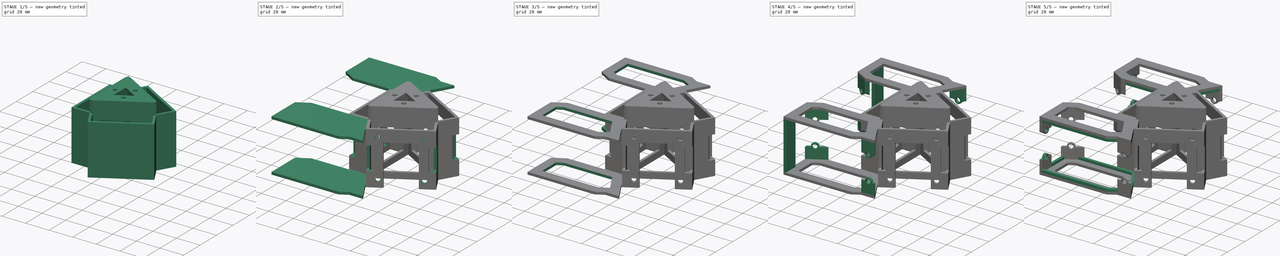
[diagram: build sequence overview — one tinted view per stage of 5, left to right]
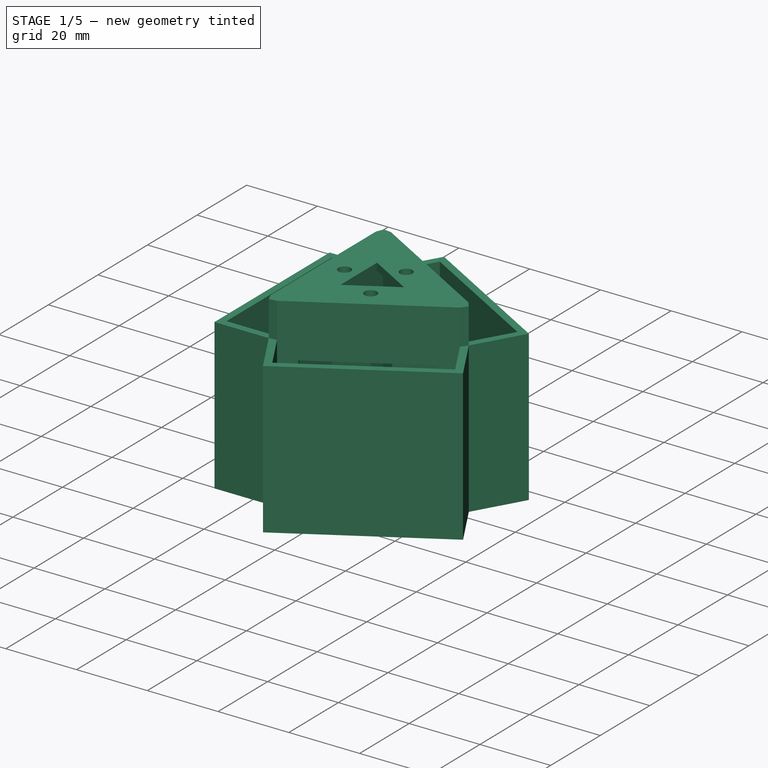
[diagram: stage 1 of 5 — iso view after this stage's code; geometry added in this stage tinted green]
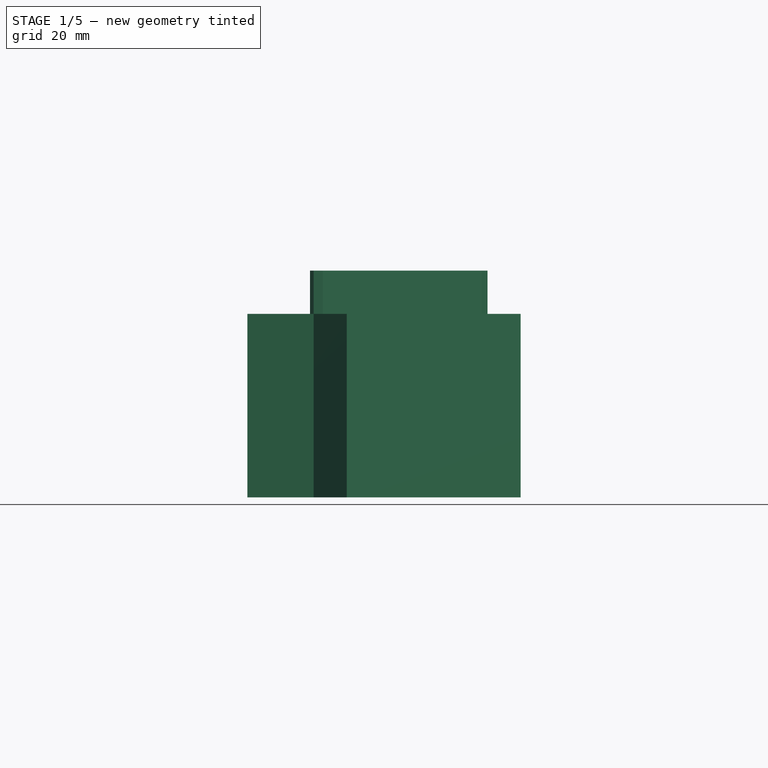
[diagram: stage 1 of 5 — front view after this stage's code; geometry added in this stage tinted green]
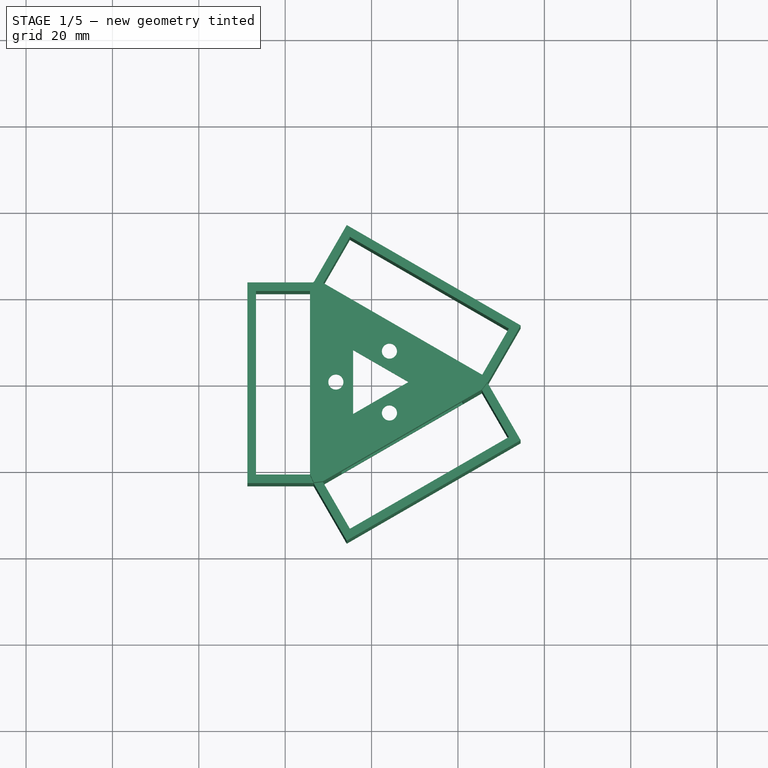
[diagram: stage 1 of 5 — top view after this stage's code; geometry added in this stage tinted green]
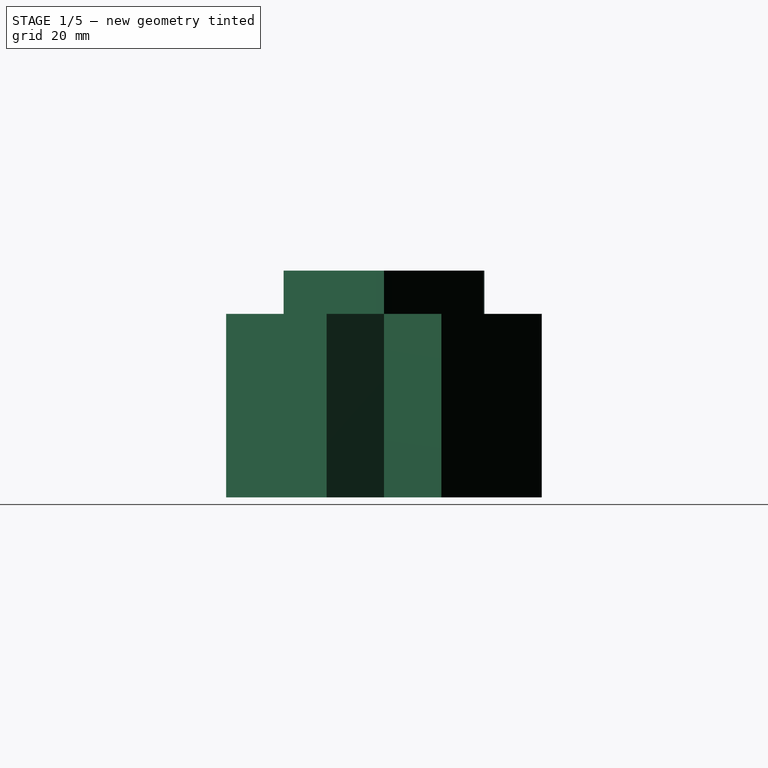
[diagram: stage 1 of 5 — right view after this stage's code; geometry added in this stage tinted green]
FCSTD DOCUMENT  (FreeCAD 0.20R)
Label: core1_motor_tof_9axis
License: All rights reserved
LicenseURL: http://en.wikipedia.org/wiki/All_rights_reserved
objects: Sketcher::SketchObject×29, PartDesign::Pocket×16, PartDesign::Pad×13, PartDesign::Body×1
note: 88 computed .brp shape members not serialized (recipe doc carries the construction recipe); baked Part::Feature solids carry a one-line shape summary decoded from their .brp

FEATURE [Sketcher::SketchObject] Sketch
  FullyConstrained = true
  MapMode = 5
  Support = -> [XY_Plane]
  sketch-geometry (30):
    g0: LineSegment StartX=24.5374 StartY=0 StartZ=0 EndX=-12.2687 EndY=21.25 EndZ=0
    g1: LineSegment StartX=-12.2687 StartY=21.25 StartZ=0 EndX=-12.2687 EndY=-21.25 EndZ=0
    g2: LineSegment StartX=-12.2687 StartY=-21.25 StartZ=0 EndX=24.5374 EndY=0 EndZ=0
    g3: Circle CenterX=0 CenterY=0 CenterZ=0 NormalX=0 NormalY=0 NormalZ=1 AngleXU=0 Radius=24.5374
    g4: LineSegment StartX=-14.2687 StartY=21.25 StartZ=0 EndX=-14.2687 EndY=-21.25 EndZ=0
    g5: LineSegment StartX=-14.2687 StartY=-21.25 StartZ=0 EndX=-26.7687 EndY=-21.25 EndZ=0
    g6: LineSegment StartX=-26.7687 StartY=-21.25 StartZ=0 EndX=-26.7687 EndY=21.25 EndZ=0
    g7: LineSegment StartX=-26.7687 StartY=21.25 StartZ=0 EndX=-14.2687 EndY=21.25 EndZ=0
    g8: LineSegment StartX=-14.2687 StartY=21.25 StartZ=0 EndX=-12.2687 EndY=21.25 EndZ=0
    g9: LineSegment StartX=-12.2687 StartY=21.25 StartZ=0 EndX=-11.2687 EndY=22.9821 EndZ=0
    g10: LineSegment StartX=24.5374 StartY=0 StartZ=0 EndX=25.5374 EndY=1.73205 EndZ=0
    g11: LineSegment StartX=24.5374 StartY=0 StartZ=0 EndX=25.5374 EndY=-1.73205 EndZ=0
    g12: LineSegment StartX=-12.2687 StartY=-21.25 StartZ=0 EndX=-11.2687 EndY=-22.9821 EndZ=0
    g13: LineSegment StartX=-11.2687 StartY=22.9821 StartZ=0 EndX=25.5374 EndY=1.73205 EndZ=0
    g14: LineSegment StartX=25.5374 StartY=1.73205 StartZ=0 EndX=31.7874 EndY=12.5574 EndZ=0
    g15: LineSegment StartX=31.7874 StartY=12.5574 StartZ=0 EndX=-5.01869 EndY=33.8074 EndZ=0
    g16: LineSegment StartX=-5.01869 StartY=33.8074 StartZ=0 EndX=-11.2687 EndY=22.9821 EndZ=0
    g17: LineSegment StartX=-11.2687 StartY=-22.9821 StartZ=0 EndX=25.5374 EndY=-1.73205 EndZ=0
    g18: LineSegment StartX=25.5374 StartY=-1.73205 StartZ=0 EndX=31.7874 EndY=-12.5574 EndZ=0
    g19: LineSegment StartX=31.7874 StartY=-12.5574 StartZ=0 EndX=-5.01869 EndY=-33.8074 EndZ=0
    g20: LineSegment StartX=-5.01869 StartY=-33.8074 StartZ=0 EndX=-11.2687 EndY=-22.9821 EndZ=0
    g21: LineSegment StartX=-13.4234 StartY=23.25 StartZ=0 EndX=-5.75074 EndY=36.5394 EndZ=0
    g22: LineSegment StartX=-5.75074 StartY=36.5394 StartZ=0 EndX=34.5194 EndY=13.2894 EndZ=0
    g23: LineSegment StartX=34.5194 StartY=13.2894 StartZ=0 EndX=26.8468 EndY=0 EndZ=0
    g24: LineSegment StartX=26.8468 StartY=0 StartZ=0 EndX=34.5194 EndY=-13.2894 EndZ=0
    g25: LineSegment StartX=34.5194 StartY=-13.2894 StartZ=0 EndX=-5.75074 EndY=-36.5394 EndZ=0
    g26: LineSegment StartX=-5.75074 StartY=-36.5394 StartZ=0 EndX=-13.4234 EndY=-23.25 EndZ=0
    g27: LineSegment StartX=-13.4234 StartY=-23.25 StartZ=0 EndX=-28.7687 EndY=-23.25 EndZ=0
    g28: LineSegment StartX=-28.7687 StartY=-23.25 StartZ=0 EndX=-28.7687 EndY=23.25 EndZ=0
    g29: LineSegment StartX=-28.7687 StartY=23.25 StartZ=0 EndX=-13.4234 EndY=23.25 EndZ=0
  constraints (84):
    c: Coincident(g0,g1)
    c: Coincident(g1,g2)
    c: Coincident(g2,g0)
    c: Equal(g0,g1)
    c: Equal(g0,g2)
    c: PointOnObject(g0,g3)
    c: PointOnObject(g1,g3)
    c: PointOnObject(g2,g3)
    c: Coincident(g3,g-1)
    c: PointOnObject(g2,g-1)
    c: Distance(g1) = 42.5
    c: Vertical(g4)
    c: Coincident(g4,g5)
    c: Horizontal(g5)
    c: Coincident(g5,g6)
    c: Vertical(g6)
    c: Coincident(g6,g7)
    c: Coincident(g7,g4)
    c: Distance(g4,g0) = 2
    c: Parallel(g5,g7)
    c: Distance(g6) = 42.5
    c: Distance(g7) = 12.5
    c: Coincident(g8,g4)
    c: Coincident(g8,g0)
    c: Perpendicular(g4,g8)
    c: Coincident(g9,g0)
    c: Coincident(g10,g0)
    c: Coincident(g11,g0)
    c: Coincident(g12,g1)
    c: Perpendicular(g2,g12)
    c: Perpendicular(g2,g11)
    c: Perpendicular(g0,g9)
    c: Distance(g9) = 2
    c: Distance(g10) = 2
    c: Distance(g11) = 2
    c: Distance(g12) = 2
    c: Coincident(g9,g13)
    c: Coincident(g13,g10)
    c: Coincident(g13,g14)
    c: Coincident(g14,g15)
    c: Coincident(g15,g16)
    c: Coincident(g16,g13)
    c: Parallel(g13,g15)
    c: Parallel(g14,g16)
    c: Angle(g10,g0) = 1.5708
    c: Distance(g14) = 12.5
    c: Perpendicular(g14,g15)
    c: Coincident(g12,g17)
    c: Coincident(g17,g11)
    c: Coincident(g17,g18)
    c: Coincident(g18,g19)
    c: Coincident(g19,g20)
    c: Coincident(g20,g17)
    c: Parallel(g17,g19)
    c: Perpendicular(g18,g17)
    c: Parallel(g20,g18)
    c: Distance(g20) = 12.5
    c: Coincident(g21,g22)
    c: Coincident(g22,g23)
    c: PointOnObject(g23,g-1)
    c: Coincident(g23,g24)
    c: Coincident(g24,g25)
    c: Coincident(g25,g26)
    c: Coincident(g26,g27)
    c: Horizontal(g27)
    c: Coincident(g27,g28)
    c: Vertical(g28)
    c: Coincident(g28,g29)
    c: Coincident(g29,g21)
    c: Horizontal(g29)
    c: Parallel(g21,g16)
    c: Parallel(g22,g15)
    c: Parallel(g23,g14)
    c: Parallel(g24,g18)
    c: Parallel(g19,g25)
    c: Parallel(g20,g26)
    c: Distance(g5,g27) = 2
    c: Distance(g5,g28) = 2
    c: Distance(g6,g29) = 2
    c: Distance(g15,g21) = 2
    c: Distance(g15,g22) = 2
    c: Distance(g14,g23) = 2
    c: Distance(g18,g25) = 2
    c: Distance(g19,g26) = 2
FEATURE [PartDesign::Pad] Pad
  Direction = (0,0,1)
  Length = 42.5
  Length2 = 10
  Profile = -> Sketch
  ReferenceAxis = -> Sketch [N_Axis]
  Type = 0
FEATURE [Sketcher::SketchObject] Sketch001
  ExternalGeometry = -> [Pad]
  FullyConstrained = true
  MapMode = 5
  Placement = pos=(0,0,42.5) rot=(0,0,1;0rad)
  Support = -> [Pad]
  sketch-geometry (12):
    g0: LineSegment StartX=-13.4234 StartY=23.25 StartZ=0 EndX=-11.2687 EndY=22.9821 EndZ=0
    g1: LineSegment StartX=-11.2687 StartY=22.9821 StartZ=0 EndX=25.5374 EndY=1.73205 EndZ=0
    g2: LineSegment StartX=25.5374 StartY=1.73205 StartZ=0 EndX=26.8468 EndY=0 EndZ=0
    g3: LineSegment StartX=26.8468 StartY=0 StartZ=0 EndX=25.5374 EndY=-1.73205 EndZ=0
    g4: LineSegment StartX=25.5374 StartY=-1.73205 StartZ=0 EndX=-11.2687 EndY=-22.9821 EndZ=0
    g5: LineSegment StartX=-11.2687 StartY=-22.9821 StartZ=0 EndX=-13.4234 EndY=-23.25 EndZ=0
    g6: LineSegment StartX=-13.4234 StartY=-23.25 StartZ=0 EndX=-14.2687 EndY=-21.25 EndZ=0
    g7: LineSegment StartX=-14.2687 StartY=-21.25 StartZ=0 EndX=-14.2687 EndY=21.25 EndZ=0
    g8: LineSegment StartX=-14.2687 StartY=21.25 StartZ=0 EndX=-13.4234 EndY=23.25 EndZ=0
    g9: LineSegment StartX=-12.2687 StartY=21.25 StartZ=0 EndX=24.5374 EndY=-3.6e-15 EndZ=0
    g10: LineSegment StartX=24.5374 StartY=-3.6e-15 StartZ=0 EndX=-12.2687 EndY=-21.25 EndZ=0
    g11: LineSegment StartX=-12.2687 StartY=-21.25 StartZ=0 EndX=-12.2687 EndY=21.25 EndZ=0
  constraints (24):
    c: Coincident(g-3,g0)
    c: Coincident(g0,g-7)
    c: Coincident(g0,g1)
    c: Coincident(g1,g-7)
    c: Coincident(g1,g2)
    c: Coincident(g2,g-4)
    c: Coincident(g2,g3)
    c: Coincident(g3,g-8)
    c: Coincident(g3,g4)
    c: Coincident(g4,g-8)
    c: Coincident(g4,g5)
    c: Coincident(g5,g-5)
    c: Coincident(g5,g6)
    c: Coincident(g6,g-6)
    c: Coincident(g6,g7)
    c: Coincident(g7,g-6)
    c: Coincident(g7,g8)
    c: Coincident(g8,g0)
    c: Coincident(g-10,g9)
    c: Coincident(g9,g-9)
    c: Coincident(g9,g10)
    c: Coincident(g10,g-10)
    c: Coincident(g10,g11)
    c: Coincident(g11,g9)
FEATURE [PartDesign::Pad] Pad001
  BaseFeature = -> Pad
  Direction = (0,0,1)
  Length = 10
  Length2 = 10
  Profile = -> Sketch001
  ReferenceAxis = -> Sketch001 [N_Axis]
  Type = 0
FEATURE [Sketcher::SketchObject] Sketch002
  ExternalGeometry = -> [Pad001]
  FullyConstrained = true
  MapMode = 5
  Placement = pos=(0,0,52.5) rot=(0,0,1;0rad)
  Support = -> [Pad001]
  sketch-geometry (14):
    g0: LineSegment StartX=-12.2687 StartY=21.25 StartZ=0 EndX=24.5374 EndY=-3.6e-15 EndZ=0
    g1: LineSegment StartX=24.5374 StartY=-3.6e-15 StartZ=0 EndX=-12.2687 EndY=-21.25 EndZ=0
    g2: LineSegment StartX=-12.2687 StartY=-21.25 StartZ=0 EndX=-12.2687 EndY=21.25 EndZ=0
    g3: LineSegment StartX=8.53739 StartY=0 StartZ=0 EndX=-4.26869 EndY=7.39359 EndZ=0
    g4: LineSegment StartX=-4.26869 StartY=7.39359 StartZ=0 EndX=-4.26869 EndY=-7.39359 EndZ=0
    g5: LineSegment StartX=-4.26869 StartY=-7.39359 StartZ=0 EndX=8.53739 EndY=0 EndZ=0
    g6: Circle CenterX=0 CenterY=0 CenterZ=0 NormalX=0 NormalY=0 NormalZ=1 AngleXU=0 Radius=8.53739
    g7: LineSegment StartX=-8.26869 StartY=0 StartZ=0 EndX=4.13435 EndY=-7.1609 EndZ=0
    g8: LineSegment StartX=4.13435 StartY=-7.1609 StartZ=0 EndX=4.13435 EndY=7.1609 EndZ=0
    g9: LineSegment StartX=4.13435 StartY=7.1609 StartZ=0 EndX=-8.26869 EndY=0 EndZ=0
    g10: Circle CenterX=0 CenterY=0 CenterZ=0 NormalX=0 NormalY=0 NormalZ=1 AngleXU=0 Radius=8.26869
    g11: Circle CenterX=4.13435 CenterY=7.1609 CenterZ=0 NormalX=0 NormalY=0 NormalZ=1 AngleXU=0 Radius=1.75
    g12: Circle CenterX=4.13435 CenterY=-7.1609 CenterZ=0 NormalX=0 NormalY=0 NormalZ=1 AngleXU=0 Radius=1.75
    g13: Circle CenterX=-8.26869 CenterY=0 CenterZ=0 NormalX=0 NormalY=0 NormalZ=1 AngleXU=0 Radius=1.75
  constraints (34):
    c: Coincident(g-4,g0)
    c: Coincident(g0,g-3)
    c: Coincident(g0,g1)
    c: Coincident(g1,g-4)
    c: Coincident(g1,g2)
    c: Coincident(g2,g0)
    c: Coincident(g3,g4)
    c: Coincident(g4,g5)
    c: Coincident(g5,g3)
    c: Equal(g3,g4)
    c: Equal(g3,g5)
    c: PointOnObject(g3,g6)
    c: PointOnObject(g4,g6)
    c: PointOnObject(g5,g6)
    c: Coincident(g6,g-1)
    c: PointOnObject(g5,g-1)
    c: Distance(g3,g0) = 8
    c: Coincident(g7,g8)
    c: Coincident(g8,g9)
    c: Coincident(g9,g7)
    c: Equal(g7,g8)
    c: Equal(g7,g9)
    c: PointOnObject(g7,g10)
    c: PointOnObject(g8,g10)
    c: PointOnObject(g9,g10)
    c: Coincident(g10,g6)
    c: PointOnObject(g9,g-1)
    c: Distance(g8,g0) = 4
    c: Coincident(g11,g8)
    c: Coincident(g12,g7)
    c: Coincident(g13,g7)
    c: Diameter(g11) = 3.5
    c: Diameter(g12) = 3.5
    c: Diameter(g13) = 3.5
FEATURE [PartDesign::Pad] Pad002
  BaseFeature = -> Pad001
  Direction = (0,0,1)
  Length = 2
  Length2 = 10
  Profile = -> Sketch002
  ReferenceAxis = -> Sketch002 [N_Axis]
  Reversed = true
  Type = 0
FEATURE [Sketcher::SketchObject] Sketch003
  ExternalGeometry = -> [Pad002]
  FullyConstrained = true
  MapMode = 5
  Placement = pos=(7.13435,-12.3571,0) rot=(0.935113,0.250563,0.250563;1.63783rad)
  Support = -> [Pad002]
  sketch-geometry (4):
    g0: LineSegment StartX=-16.25 StartY=37.5 StartZ=0 EndX=16.25 EndY=37.5 EndZ=0
    g1: LineSegment StartX=16.25 StartY=37.5 StartZ=0 EndX=16.25 EndY=5 EndZ=0
    g2: LineSegment StartX=16.25 StartY=5 StartZ=0 EndX=-16.25 EndY=5 EndZ=0
    g3: LineSegment StartX=-16.25 StartY=5 StartZ=0 EndX=-16.25 EndY=37.5 EndZ=0
  constraints (12):
    c: Coincident(g0,g1)
    c: Coincident(g1,g2)
    c: Coincident(g2,g3)
    c: Coincident(g3,g0)
    c: Horizontal(g0)
    c: Horizontal(g2)
    c: Vertical(g1)
    c: Vertical(g3)
    c: Distance(g2,g-1) = 5
    c: Distance(g1,g-4) = 5
    c: Distance(g0,g-3) = 5
    c: Distance(g0,g-5) = 5
FEATURE [PartDesign::Pocket] Pocket
  BaseFeature = -> Pad002
  Direction = (-0.5,0.866025,1e-16)
  Length = 2
  Length2 = 5
  Profile = -> Sketch003
  ReferenceAxis = -> Sketch003 [N_Axis]
  Type = 0
FEATURE [Sketcher::SketchObject] Sketch004
  ExternalGeometry = -> [Pocket]
  FullyConstrained = true
  MapMode = 5
  Placement = pos=(-14.2687,0,0) rot=(0.57735,-0.57735,-0.57735;2.0944rad)
  Support = -> [Pocket]
  sketch-geometry (4):
    g0: LineSegment StartX=-16.25 StartY=37.5 StartZ=0 EndX=16.25 EndY=37.5 EndZ=0
    g1: LineSegment StartX=16.25 StartY=37.5 StartZ=0 EndX=16.25 EndY=5 EndZ=0
    g2: LineSegment StartX=16.25 StartY=5 StartZ=0 EndX=-16.25 EndY=5 EndZ=0
    g3: LineSegment StartX=-16.25 StartY=5 StartZ=0 EndX=-16.25 EndY=37.5 EndZ=0
  constraints (12):
    c: Coincident(g0,g1)
    c: Coincident(g1,g2)
    c: Coincident(g2,g3)
    c: Coincident(g3,g0)
    c: Horizontal(g0)
    c: Horizontal(g2)
    c: Vertical(g1)
    c: Vertical(g3)
    c: Distance(g2,g-1) = 5
    c: Distance(g1,g-5) = 5
    c: Distance(g0,g-3) = 5
    c: Distance(g0,g-4) = 5
FEATURE [PartDesign::Pocket] Pocket001
  BaseFeature = -> Pocket
  Direction = (1,0,0)
  Length = 2
  Length2 = 5
  Profile = -> Sketch004
  ReferenceAxis = -> Sketch004 [N_Axis]
  Type = 0
FEATURE [Sketcher::SketchObject] Sketch005
  ExternalGeometry = -> [Pocket001]
  FullyConstrained = true
  MapMode = 5
  Placement = pos=(7.13435,12.3571,0) rot=(0.186157,0.694747,0.694747;2.77349rad)
  Support = -> [Pocket001]
  sketch-geometry (4):
    g0: LineSegment StartX=-16.25 StartY=37.5 StartZ=0 EndX=16.25 EndY=37.5 EndZ=0
    g1: LineSegment StartX=16.25 StartY=37.5 StartZ=0 EndX=16.25 EndY=5 EndZ=0
    g2: LineSegment StartX=16.25 StartY=5 StartZ=0 EndX=-16.25 EndY=5 EndZ=0
    g3: LineSegment StartX=-16.25 StartY=5 StartZ=0 EndX=-16.25 EndY=37.5 EndZ=0
  constraints (12):
    c: Coincident(g0,g1)
    c: Coincident(g1,g2)
    c: Coincident(g2,g3)
    c: Coincident(g3,g0)
    c: Horizontal(g0)
    c: Horizontal(g2)
    c: Vertical(g1)
    c: Vertical(g3)
    c: Distance(g2,g-1) = 5
    c: Distance(g1,g-5) = 5
    c: Distance(g0,g-3) = 5
    c: Distance(g0,g-4) = 5
FEATURE [PartDesign::Pocket] Pocket002
  BaseFeature = -> Pocket001
  Direction = (-0.5,-0.866025,0)
  Length = 2
  Length2 = 5
  Profile = -> Sketch005
  ReferenceAxis = -> Sketch005 [N_Axis]
  Type = 0
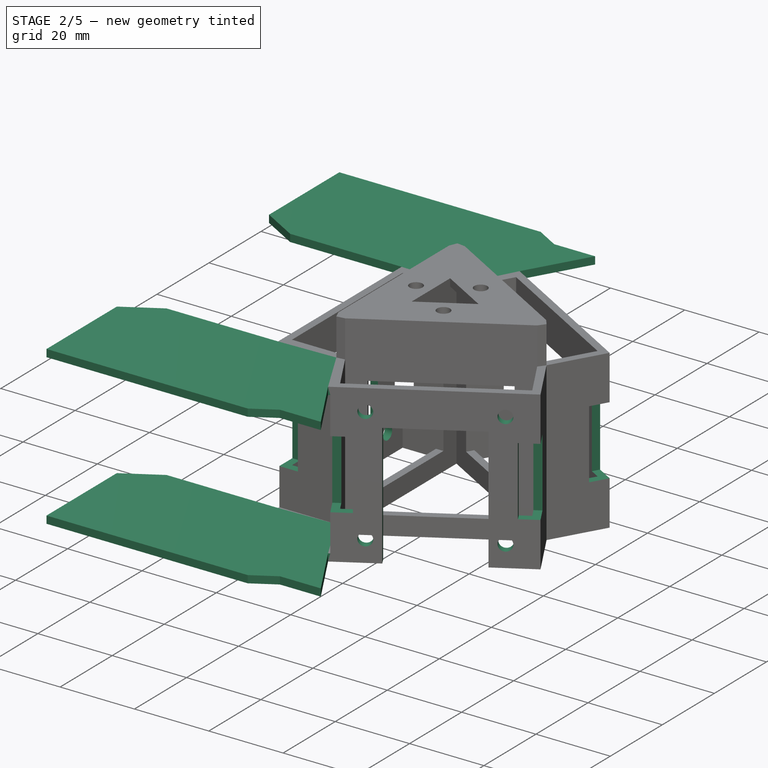
[diagram: stage 2 of 5 — iso view after this stage's code; geometry added in this stage tinted green]
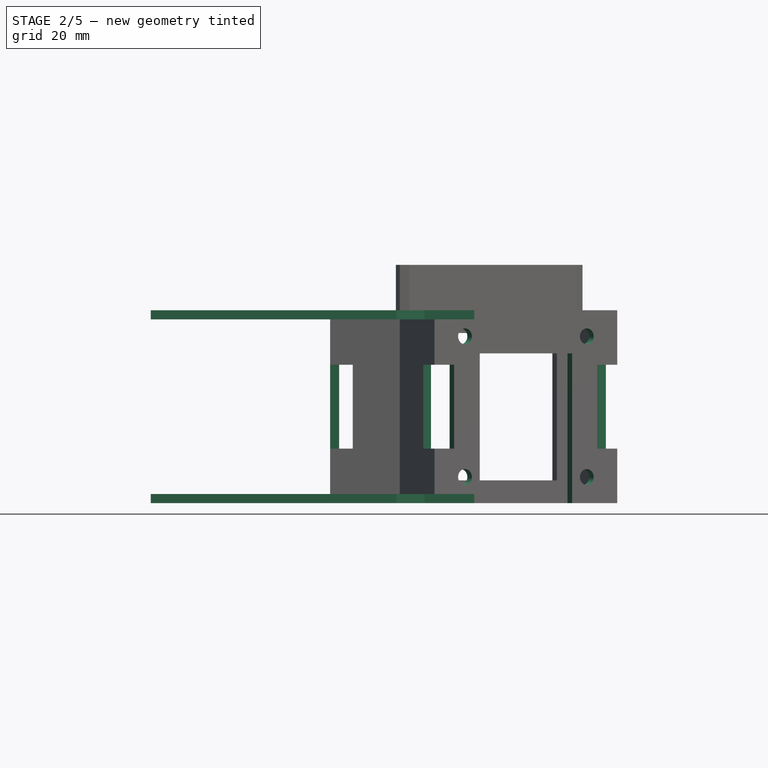
[diagram: stage 2 of 5 — front view after this stage's code; geometry added in this stage tinted green]
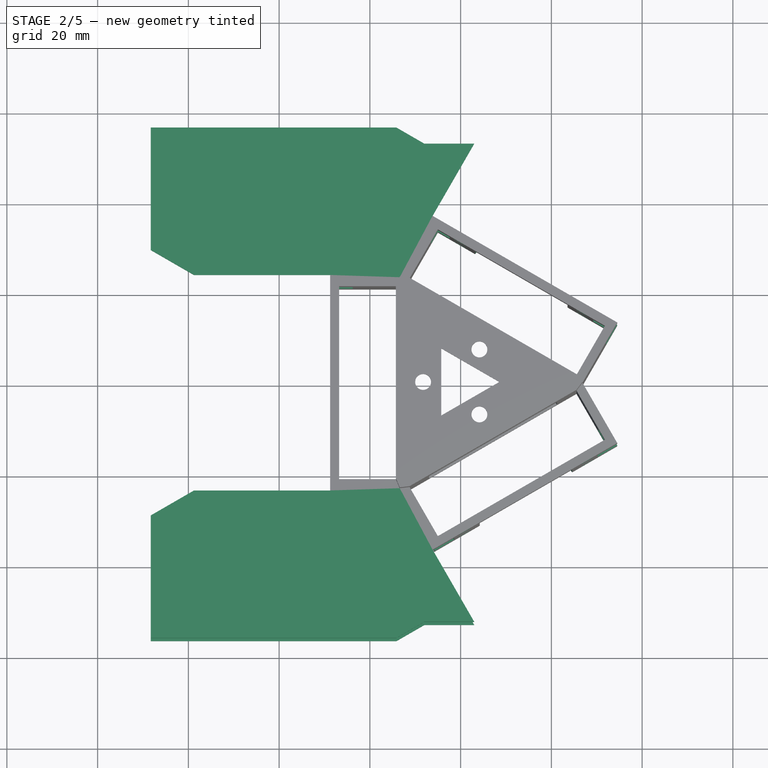
[diagram: stage 2 of 5 — top view after this stage's code; geometry added in this stage tinted green]
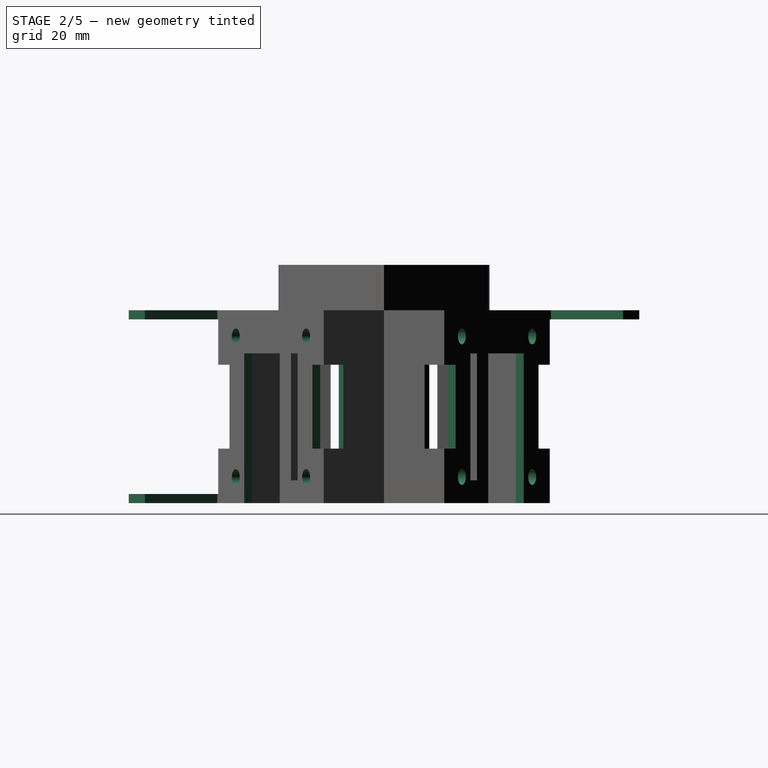
[diagram: stage 2 of 5 — right view after this stage's code; geometry added in this stage tinted green]
FEATURE [Sketcher::SketchObject] Sketch006
  ExternalGeometry = -> [Pocket002]
  FullyConstrained = true
  MapMode = 5
  Placement = pos=(14.3843,-24.9144,0) rot=(0.935113,0.250563,0.250563;1.63783rad)
  Support = -> [Pocket002]
  sketch-geometry (20):
    g0: LineSegment StartX=-15.5 StartY=36.75 StartZ=0 EndX=15.5 EndY=36.75 EndZ=0
    g1: LineSegment StartX=15.5 StartY=36.75 StartZ=0 EndX=15.5 EndY=5.75 EndZ=0
    g2: LineSegment StartX=15.5 StartY=5.75 StartZ=0 EndX=-15.5 EndY=5.75 EndZ=0
    g3: LineSegment StartX=-15.5 StartY=5.75 StartZ=0 EndX=-15.5 EndY=36.75 EndZ=0
    g4: Circle CenterX=-15.5 CenterY=36.75 CenterZ=0 NormalX=0 NormalY=0 NormalZ=1 AngleXU=0 Radius=1.75
    g5: Circle CenterX=15.5 CenterY=36.75 CenterZ=0 NormalX=0 NormalY=0 NormalZ=1 AngleXU=0 Radius=1.75
    g6: Circle CenterX=15.5 CenterY=5.75 CenterZ=0 NormalX=0 NormalY=0 NormalZ=1 AngleXU=0 Radius=1.75
    g7: Circle CenterX=-15.5 CenterY=5.75 CenterZ=0 NormalX=0 NormalY=0 NormalZ=1 AngleXU=0 Radius=1.75
    g8: LineSegment StartX=-11.75 StartY=33 StartZ=0 EndX=11.75 EndY=33 EndZ=0
    g9: LineSegment StartX=11.75 StartY=33 StartZ=0 EndX=11.75 EndY=0 EndZ=0
    g10: LineSegment StartX=11.75 StartY=0 StartZ=0 EndX=-11.75 EndY=0 EndZ=0
    g11: LineSegment StartX=-11.75 StartY=0 StartZ=0 EndX=-11.75 EndY=33 EndZ=0
    g12: LineSegment StartX=-23.25 StartY=30.5 StartZ=0 EndX=-18.25 EndY=30.5 EndZ=0
    g13: LineSegment StartX=-18.25 StartY=30.5 StartZ=0 EndX=-18.25 EndY=12 EndZ=0
    g14: LineSegment StartX=-18.25 StartY=12 StartZ=0 EndX=-23.25 EndY=12 EndZ=0
    g15: LineSegment StartX=-23.25 StartY=12 StartZ=0 EndX=-23.25 EndY=30.5 EndZ=0
    g16: LineSegment StartX=23.25 StartY=30.5 StartZ=0 EndX=18.25 EndY=30.5 EndZ=0
    g17: LineSegment StartX=18.25 StartY=30.5 StartZ=0 EndX=18.25 EndY=12 EndZ=0
    g18: LineSegment StartX=18.25 StartY=12 StartZ=0 EndX=23.25 EndY=12 EndZ=0
    g19: LineSegment StartX=23.25 StartY=12 StartZ=0 EndX=23.25 EndY=30.5 EndZ=0
  constraints (56):
    c: Coincident(g0,g1)
    c: Coincident(g1,g2)
    c: Coincident(g2,g3)
    c: Coincident(g3,g0)
    c: Horizontal(g0)
    c: Horizontal(g2)
    c: Vertical(g1)
    c: Vertical(g3)
    c: Distance(g0) = 31
    c: Distance(g3) = 31
    c: Distance(g0,g-3) = 5.75
    c: Distance(g0,g-6) = 5.75
    c: Coincident(g4,g0)
    c: Coincident(g5,g0)
    c: Coincident(g6,g1)
    c: Coincident(g7,g2)
    c: Diameter(g4) = 3.5
    c: Diameter(g5) = 3.5
    c: Diameter(g6) = 3.5
    c: Diameter(g7) = 3.5
    c: Coincident(g8,g9)
    c: Coincident(g9,g10)
    c: Coincident(g10,g11)
    c: Coincident(g11,g8)
    c: Horizontal(g8)
    c: Horizontal(g10)
    c: Vertical(g9)
    c: Vertical(g11)
    c: PointOnObject(g9,g-1)
    c: Distance(g8,g3) = 3.75
    c: Distance(g8,g1) = 3.75
    c: Distance(g8,g0) = 3.75
    c: Coincident(g12,g13)
    c: Coincident(g13,g14)
    c: Coincident(g14,g15)
    c: Coincident(g15,g12)
    c: Horizontal(g12)
    c: Horizontal(g14)
    c: Vertical(g13)
    c: Vertical(g15)
    c: PointOnObject(g12,g-4)
    c: Coincident(g16,g17)
    c: Coincident(g17,g18)
    c: Coincident(g18,g19)
    c: Coincident(g19,g16)
    c: Horizontal(g16)
    c: Horizontal(g18)
    c: Vertical(g17)
    c: Vertical(g19)
    c: PointOnObject(g16,g-5)
    c: Distance(g16,g-3) = 12
    c: Distance(g17,g-1) = 12
    c: Distance(g12,g-3) = 12
    c: Distance(g13,g-1) = 12
    c: Distance(g14) = 5
    c: Distance(g18) = 5
FEATURE [PartDesign::Pocket] Pocket003
  BaseFeature = -> Pocket002
  Direction = (-0.5,0.866025,-1e-16)
  Length = 5
  Length2 = 5
  Profile = -> Sketch006
  ReferenceAxis = -> Sketch006 [N_Axis]
  Type = 0
FEATURE [Sketcher::SketchObject] Sketch007
  ExternalGeometry = -> [Pocket003]
  FullyConstrained = true
  MapMode = 5
  Placement = pos=(-28.7687,0,0) rot=(0.57735,-0.57735,-0.57735;2.0944rad)
  Support = -> [Pocket003]
  sketch-geometry (20):
    g0: LineSegment StartX=-15.5 StartY=36.75 StartZ=0 EndX=15.5 EndY=36.75 EndZ=0
    g1: LineSegment StartX=15.5 StartY=36.75 StartZ=0 EndX=15.5 EndY=5.75 EndZ=0
    g2: LineSegment StartX=15.5 StartY=5.75 StartZ=0 EndX=-15.5 EndY=5.75 EndZ=0
    g3: LineSegment StartX=-15.5 StartY=5.75 StartZ=0 EndX=-15.5 EndY=36.75 EndZ=0
    g4: Circle CenterX=-15.5 CenterY=36.75 CenterZ=0 NormalX=0 NormalY=0 NormalZ=1 AngleXU=0 Radius=1.75
    g5: Circle CenterX=15.5 CenterY=36.75 CenterZ=0 NormalX=0 NormalY=0 NormalZ=1 AngleXU=0 Radius=1.75
    g6: Circle CenterX=15.5 CenterY=5.75 CenterZ=0 NormalX=0 NormalY=0 NormalZ=1 AngleXU=0 Radius=1.75
    g7: Circle CenterX=-15.5 CenterY=5.75 CenterZ=0 NormalX=0 NormalY=0 NormalZ=1 AngleXU=0 Radius=1.75
    g8: LineSegment StartX=-11.75 StartY=33 StartZ=0 EndX=11.75 EndY=33 EndZ=0
    g9: LineSegment StartX=11.75 StartY=33 StartZ=0 EndX=11.75 EndY=0 EndZ=0
    g10: LineSegment StartX=11.75 StartY=0 StartZ=0 EndX=-11.75 EndY=0 EndZ=0
    g11: LineSegment StartX=-11.75 StartY=0 StartZ=0 EndX=-11.75 EndY=33 EndZ=0
    g12: LineSegment StartX=-23.25 StartY=30.5 StartZ=0 EndX=-18.25 EndY=30.5 EndZ=0
    g13: LineSegment StartX=-18.25 StartY=30.5 StartZ=0 EndX=-18.25 EndY=12 EndZ=0
    g14: LineSegment StartX=-18.25 StartY=12 StartZ=0 EndX=-23.25 EndY=12 EndZ=0
    g15: LineSegment StartX=-23.25 StartY=12 StartZ=0 EndX=-23.25 EndY=30.5 EndZ=0
    g16: LineSegment StartX=23.25 StartY=30.5 StartZ=0 EndX=18.25 EndY=30.5 EndZ=0
    g17: LineSegment StartX=18.25 StartY=30.5 StartZ=0 EndX=18.25 EndY=12 EndZ=0
    g18: LineSegment StartX=18.25 StartY=12 StartZ=0 EndX=23.25 EndY=12 EndZ=0
    g19: LineSegment StartX=23.25 StartY=12 StartZ=0 EndX=23.25 EndY=30.5 EndZ=0
  constraints (56):
    c: Coincident(g0,g1)
    c: Coincident(g1,g2)
    c: Coincident(g2,g3)
    c: Coincident(g3,g0)
    c: Horizontal(g0)
    c: Horizontal(g2)
    c: Vertical(g1)
    c: Vertical(g3)
    c: Distance(g0) = 31
    c: Distance(g1) = 31
    c: Distance(g0,g-5) = 5.75
    c: Distance(g0,g-6) = 5.75
    c: Coincident(g4,g0)
    c: Coincident(g5,g0)
    c: Coincident(g6,g1)
    c: Coincident(g7,g2)
    c: Diameter(g4) = 3.5
    c: Diameter(g5) = 3.5
    c: Diameter(g6) = 3.5
    c: Diameter(g7) = 3.5
    c: Coincident(g8,g9)
    c: Coincident(g9,g10)
    c: Coincident(g10,g11)
    c: Coincident(g11,g8)
    c: Horizontal(g8)
    c: Horizontal(g10)
    c: Vertical(g9)
    c: Vertical(g11)
    c: PointOnObject(g9,g-1)
    c: Distance(g8,g0) = 3.75
    c: Distance(g8,g3) = 3.75
    c: Distance(g8,g1) = 3.75
    c: Coincident(g12,g13)
    c: Coincident(g13,g14)
    c: Coincident(g14,g15)
    c: Coincident(g15,g12)
    c: Horizontal(g12)
    c: Horizontal(g14)
    c: Vertical(g13)
    c: Vertical(g15)
    c: PointOnObject(g12,g-3)
    c: Coincident(g16,g17)
    c: Coincident(g17,g18)
    c: Coincident(g18,g19)
    c: Coincident(g19,g16)
    c: Horizontal(g16)
    c: Horizontal(g18)
    c: Vertical(g17)
    c: Vertical(g19)
    c: PointOnObject(g16,g-7)
    c: Distance(g12,g-5) = 12
    c: Distance(g13,g-1) = 12
    c: Distance(g17,g-1) = 12
    c: Distance(g16,g-5) = 12
    c: Distance(g16) = 5
    c: Distance(g12) = 5
FEATURE [PartDesign::Pocket] Pocket004
  BaseFeature = -> Pocket003
  Direction = (1,0,0)
  Length = 5
  Length2 = 5
  Profile = -> Sketch007
  ReferenceAxis = -> Sketch007 [N_Axis]
  Type = 0
FEATURE [Sketcher::SketchObject] Sketch008
  ExternalGeometry = -> [Pocket004]
  FullyConstrained = true
  MapMode = 5
  Placement = pos=(14.3843,24.9144,0) rot=(0.186157,0.694747,0.694747;2.77349rad)
  Support = -> [Pocket004]
  sketch-geometry (20):
    g0: LineSegment StartX=-15.5 StartY=36.75 StartZ=0 EndX=15.5 EndY=36.75 EndZ=0
    g1: LineSegment StartX=15.5 StartY=36.75 StartZ=0 EndX=15.5 EndY=5.75 EndZ=0
    g2: LineSegment StartX=15.5 StartY=5.75 StartZ=0 EndX=-15.5 EndY=5.75 EndZ=0
    g3: LineSegment StartX=-15.5 StartY=5.75 StartZ=0 EndX=-15.5 EndY=36.75 EndZ=0
    g4: Circle CenterX=-15.5 CenterY=36.75 CenterZ=0 NormalX=0 NormalY=0 NormalZ=1 AngleXU=0 Radius=1.75
    g5: Circle CenterX=15.5 CenterY=36.75 CenterZ=0 NormalX=0 NormalY=0 NormalZ=1 AngleXU=0 Radius=1.75
    g6: Circle CenterX=15.5 CenterY=5.75 CenterZ=0 NormalX=0 NormalY=0 NormalZ=1 AngleXU=0 Radius=1.75
    g7: Circle CenterX=-15.5 CenterY=5.75 CenterZ=0 NormalX=0 NormalY=0 NormalZ=1 AngleXU=0 Radius=1.75
    g8: LineSegment StartX=-11.75 StartY=33 StartZ=0 EndX=11.75 EndY=33 EndZ=0
    g9: LineSegment StartX=11.75 StartY=33 StartZ=0 EndX=11.75 EndY=0 EndZ=0
    g10: LineSegment StartX=11.75 StartY=0 StartZ=0 EndX=-11.75 EndY=0 EndZ=0
    g11: LineSegment StartX=-11.75 StartY=0 StartZ=0 EndX=-11.75 EndY=33 EndZ=0
    g12: LineSegment StartX=-23.25 StartY=30.5 StartZ=0 EndX=-18.25 EndY=30.5 EndZ=0
    g13: LineSegment StartX=-18.25 StartY=30.5 StartZ=0 EndX=-18.25 EndY=12 EndZ=0
    g14: LineSegment StartX=-18.25 StartY=12 StartZ=0 EndX=-23.25 EndY=12 EndZ=0
    g15: LineSegment StartX=-23.25 StartY=12 StartZ=0 EndX=-23.25 EndY=30.5 EndZ=0
    g16: LineSegment StartX=23.25 StartY=30.5 StartZ=0 EndX=18.25 EndY=30.5 EndZ=0
    g17: LineSegment StartX=18.25 StartY=30.5 StartZ=0 EndX=18.25 EndY=12 EndZ=0
    g18: LineSegment StartX=18.25 StartY=12 StartZ=0 EndX=23.25 EndY=12 EndZ=0
    g19: LineSegment StartX=23.25 StartY=12 StartZ=0 EndX=23.25 EndY=30.5 EndZ=0
  constraints (56):
    c: Coincident(g0,g1)
    c: Coincident(g1,g2)
    c: Coincident(g2,g3)
    c: Coincident(g3,g0)
    c: Horizontal(g0)
    c: Horizontal(g2)
    c: Vertical(g1)
    c: Vertical(g3)
    c: Distance(g0) = 31
    c: Distance(g1) = 31
    c: Distance(g0,g-5) = 5.75
    c: Distance(g0,g-6) = 5.75
    c: Coincident(g4,g0)
    c: Coincident(g5,g0)
    c: Coincident(g6,g1)
    c: Coincident(g7,g2)
    c: Diameter(g4) = 3.5
    c: Diameter(g5) = 3.5
    c: Diameter(g6) = 3.5
    c: Diameter(g7) = 3.5
    c: Coincident(g8,g9)
    c: Coincident(g9,g10)
    c: Coincident(g10,g11)
    c: Coincident(g11,g8)
    c: Horizontal(g8)
    c: Horizontal(g10)
    c: Vertical(g9)
    c: Vertical(g11)
    c: PointOnObject(g9,g-1)
    c: Distance(g8,g3) = 3.75
    c: Distance(g8,g1) = 3.75
    c: Distance(g8,g0) = 3.75
    c: Coincident(g12,g13)
    c: Coincident(g13,g14)
    c: Coincident(g14,g15)
    c: Coincident(g15,g12)
    c: Horizontal(g12)
    c: Horizontal(g14)
    c: Vertical(g13)
    c: Vertical(g15)
    c: PointOnObject(g12,g-3)
    c: Coincident(g16,g17)
    c: Coincident(g17,g18)
    c: Coincident(g18,g19)
    c: Coincident(g19,g16)
    c: Horizontal(g16)
    c: Horizontal(g18)
    c: Vertical(g17)
    c: Vertical(g19)
    c: PointOnObject(g16,g-7)
    c: Distance(g12,g-5) = 12
    c: Distance(g13,g-1) = 12
    c: Distance(g17,g-1) = 12
    c: Distance(g16,g-5) = 12
    c: Distance(g14) = 5
    c: Distance(g18) = 5
FEATURE [PartDesign::Pocket] Pocket005
  BaseFeature = -> Pocket004
  Direction = (-0.5,-0.866025,0)
  Length = 5
  Length2 = 5
  Profile = -> Sketch008
  ReferenceAxis = -> Sketch008 [N_Axis]
  Type = 0
FEATURE [Sketcher::SketchObject] Sketch009
  ExternalGeometry = -> [Pocket005]
  FullyConstrained = true
  MapMode = 5
  Placement = pos=(0,0,42.5) rot=(0,0,1;0rad)
  Support = -> [Pocket005]
  sketch-geometry (18):
    g0: LineSegment StartX=0 StartY=52.6962 StartZ=0 EndX=-45.6362 EndY=26.3481 EndZ=0
    g1: LineSegment StartX=-45.6362 StartY=26.3481 StartZ=0 EndX=-45.6362 EndY=-26.3481 EndZ=0
    g2: LineSegment StartX=-45.6362 StartY=-26.3481 StartZ=0 EndX=0 EndY=-52.6962 EndZ=0
    g3: LineSegment StartX=0 StartY=-52.6962 StartZ=0 EndX=45.6362 EndY=-26.3481 EndZ=0
    g4: LineSegment StartX=45.6362 StartY=-26.3481 StartZ=0 EndX=45.6362 EndY=26.3481 EndZ=0
    g5: LineSegment StartX=45.6362 StartY=26.3481 StartZ=0 EndX=0 EndY=52.6962 EndZ=0
    g6: Circle CenterX=0 CenterY=0 CenterZ=0 NormalX=0 NormalY=0 NormalZ=1 AngleXU=0 Radius=52.6962
    g7: LineSegment StartX=-28.7687 StartY=23.25 StartZ=0 EndX=-13.4234 EndY=23.25 EndZ=0
    g8: LineSegment StartX=-13.4234 StartY=23.25 StartZ=0 EndX=-5.75074 EndY=36.5394 EndZ=0
    g9: LineSegment StartX=-5.75074 StartY=36.5394 StartZ=0 EndX=-6.18376 EndY=36.7894 EndZ=0
    g10: LineSegment StartX=-6.18376 StartY=36.7894 StartZ=0 EndX=3 EndY=52.6962 EndZ=0
    g11: LineSegment StartX=3 StartY=52.6962 StartZ=0 EndX=-8 EndY=52.6962 EndZ=0
    g12: LineSegment StartX=-8 StartY=52.6962 StartZ=0 EndX=-14.1554 EndY=56.25 EndZ=0
    g13: LineSegment StartX=-14.1554 StartY=56.25 StartZ=0 EndX=-68.295 EndY=56.25 EndZ=0
    g14: LineSegment StartX=-68.295 StartY=56.25 StartZ=0 EndX=-68.295 EndY=29.25 EndZ=0
    g15: LineSegment StartX=-68.295 StartY=29.25 StartZ=0 EndX=-58.7687 EndY=23.75 EndZ=0
    g16: LineSegment StartX=-58.7687 StartY=23.75 StartZ=0 EndX=-28.7687 EndY=23.75 EndZ=0
    g17: LineSegment StartX=-28.7687 StartY=23.75 StartZ=0 EndX=-28.7687 EndY=23.25 EndZ=0
  constraints (46):
    c: Coincident(g0,g1)
    c: Coincident(g1,g2)
    c: Coincident(g2,g3)
    c: Coincident(g3,g4)
    c: Coincident(g4,g5)
    c: Coincident(g5,g0)
    c: Equal(g0, g1-g5) x5
    c: PointOnObject(g0,g6)
    c: PointOnObject(g1,g6)
    c: PointOnObject(g2,g6)
    c: PointOnObject(g3,g6)
    c: PointOnObject(g4,g6)
    c: PointOnObject(g5,g6)
    c: Coincident(g6,g-1)
    c: PointOnObject(g5,g-2)
    c: Coincident(g-4,g7)
    c: Coincident(g7,g-4)
    c: Coincident(g7,g8)
    c: Coincident(g8,g-3)
    c: Coincident(g8,g9)
    c: Coincident(g9,g10)
    c: Coincident(g10,g11)
    c: Horizontal(g11)
    c: Tangent(g11,g6)
    c: Coincident(g11,g12)
    c: Coincident(g12,g13)
    c: Horizontal(g13)
    c: Coincident(g13,g14)
    c: Vertical(g14)
    c: Coincident(g14,g15)
    c: Coincident(g15,g16)
    c: Horizontal(g16)
    c: Coincident(g16,g17)
    c: Coincident(g17,g7)
    c: Angle(g9,g8) = 1.5708
    c: Distance(g9) = 0.5
    c: Angle(g9,g10) = 1.5708
    c: Distance(g10,g-2) = 3
    c: Distance(g11) = 11
    c: Distance(g17) = 0.5
    c: Distance(g16) = 30
    c: Angle(g16,g15) = 2.61799
    c: Distance(g15) = 11
    c: Angle(g7,g17) = 1.5708
    c: Distance(g15,g13) = 32.5
    c: Angle(g11,g12) = 2.61799
FEATURE [Sketcher::SketchObject] MirroredSketch
  FullyConstrained = false
  Placement = pos=(0,0,42.5) rot=(0,0,1;0rad)
  sketch-geometry (18):
    g0: LineSegment StartX=0 StartY=-52.6962 StartZ=0 EndX=-45.6362 EndY=-26.3481 EndZ=0
    g1: LineSegment StartX=-45.6362 StartY=-26.3481 StartZ=0 EndX=-45.6362 EndY=26.3481 EndZ=0
    g2: LineSegment StartX=-45.6362 StartY=26.3481 StartZ=0 EndX=0 EndY=52.6962 EndZ=0
    g3: LineSegment StartX=0 StartY=52.6962 StartZ=0 EndX=45.6362 EndY=26.3481 EndZ=0
    g4: LineSegment StartX=45.6362 StartY=26.3481 StartZ=0 EndX=45.6362 EndY=-26.3481 EndZ=0
    g5: LineSegment StartX=45.6362 StartY=-26.3481 StartZ=0 EndX=0 EndY=-52.6962 EndZ=0
    g6: Circle CenterX=0 CenterY=0 CenterZ=0 NormalX=0 NormalY=0 NormalZ=1 AngleXU=0 Radius=52.6962
    g7: LineSegment StartX=-28.7687 StartY=-23.25 StartZ=0 EndX=-13.4234 EndY=-23.25 EndZ=0
    g8: LineSegment StartX=-13.4234 StartY=-23.25 StartZ=0 EndX=-5.75074 EndY=-36.5394 EndZ=0
    g9: LineSegment StartX=-5.75074 StartY=-36.5394 StartZ=0 EndX=-6.18376 EndY=-36.7894 EndZ=0
    g10: LineSegment StartX=-6.18376 StartY=-36.7894 StartZ=0 EndX=3 EndY=-52.6962 EndZ=0
    g11: LineSegment StartX=3 StartY=-52.6962 StartZ=0 EndX=-8 EndY=-52.6962 EndZ=0
    g12: LineSegment StartX=-8 StartY=-52.6962 StartZ=0 EndX=-14.1554 EndY=-56.25 EndZ=0
    g13: LineSegment StartX=-14.1554 StartY=-56.25 StartZ=0 EndX=-68.295 EndY=-56.25 EndZ=0
    g14: LineSegment StartX=-68.295 StartY=-56.25 StartZ=0 EndX=-68.295 EndY=-29.25 EndZ=0
    g15: LineSegment StartX=-68.295 StartY=-29.25 StartZ=0 EndX=-58.7687 EndY=-23.75 EndZ=0
    g16: LineSegment StartX=-58.7687 StartY=-23.75 StartZ=0 EndX=-28.7687 EndY=-23.75 EndZ=0
    g17: LineSegment StartX=-28.7687 StartY=-23.75 StartZ=0 EndX=-28.7687 EndY=-23.25 EndZ=0
  constraints (40):
    c: Coincident(g0,g1)
    c: Coincident(g1,g2)
    c: Coincident(g2,g3)
    c: Coincident(g3,g4)
    c: Coincident(g4,g5)
    c: Coincident(g5,g0)
    c: Equal(g0, g1-g5) x5
    c: PointOnObject(g0,g6)
    c: PointOnObject(g1,g6)
    c: PointOnObject(g2,g6)
    c: PointOnObject(g3,g6)
    c: PointOnObject(g4,g6)
    c: PointOnObject(g5,g6)
    c: Coincident(g7,g8)
    c: Coincident(g8,g9)
    c: Coincident(g9,g10)
    c: Coincident(g10,g11)
    c: Horizontal(g11)
    c: Tangent(g11,g6)
    c: Coincident(g11,g12)
    c: Coincident(g12,g13)
    c: Horizontal(g13)
    c: Coincident(g13,g14)
    c: Vertical(g14)
    c: Coincident(g14,g15)
    c: Coincident(g15,g16)
    c: Horizontal(g16)
    c: Coincident(g16,g17)
    c: Coincident(g17,g7)
    c: Angle(g9,g8) = -1.5708
    c: Distance(g9) = 0.5
    c: Angle(g9,g10) = -1.5708
    c: Distance(g11) = 11
    c: Distance(g17) = 0.5
    c: Distance(g16) = 30
    c: Angle(g16,g15) = -2.61799
    c: Distance(g15) = 11
    c: Angle(g7,g17) = -1.5708
    c: Distance(g15,g13) = 32.5
    c: Angle(g11,g12) = -2.61799
FEATURE [PartDesign::Pad] Pad003
  BaseFeature = -> Pocket005
  Direction = (0,0,1)
  Length = 2
  Length2 = 10
  Profile = -> Sketch009
  ReferenceAxis = -> Sketch009 [N_Axis]
  Reversed = true
  Type = 0
FEATURE [PartDesign::Pad] Pad004
  BaseFeature = -> Pad003
  Direction = (0,0,1)
  Length = 2
  Length2 = 10
  Profile = -> MirroredSketch
  ReferenceAxis = -> MirroredSketch [N_Axis]
  Reversed = true
  Type = 0
FEATURE [Sketcher::SketchObject] Sketch010
  ExternalGeometry = -> [Pad004]
  FullyConstrained = true
  MapMode = 5
  Placement = pos=(0,0,0) rot=(1,0,0;3.14159rad)
  Support = -> [Pad004]
  sketch-geometry (11):
    g0: LineSegment StartX=-68.295 StartY=56.25 StartZ=0 EndX=-68.295 EndY=29.25 EndZ=0
    g1: LineSegment StartX=-68.295 StartY=29.25 StartZ=0 EndX=-58.7687 EndY=23.75 EndZ=0
    g2: LineSegment StartX=-58.7687 StartY=23.75 StartZ=0 EndX=-28.7687 EndY=23.75 EndZ=0
    g3: LineSegment StartX=-28.7687 StartY=23.75 StartZ=0 EndX=-28.7687 EndY=23.25 EndZ=0
    g4: LineSegment StartX=-28.7687 StartY=23.25 StartZ=0 EndX=-13.4234 EndY=23.25 EndZ=0
    g5: LineSegment StartX=-13.4234 StartY=23.25 StartZ=0 EndX=-5.75074 EndY=36.5394 EndZ=0
    g6: LineSegment StartX=-5.75074 StartY=36.5394 StartZ=0 EndX=-6.18376 EndY=36.7894 EndZ=0
    g7: LineSegment StartX=-6.18376 StartY=36.7894 StartZ=0 EndX=3 EndY=52.6962 EndZ=0
    g8: LineSegment StartX=3 StartY=52.6962 StartZ=0 EndX=-8 EndY=52.6962 EndZ=0
    g9: LineSegment StartX=-8 StartY=52.6962 StartZ=0 EndX=-14.1554 EndY=56.25 EndZ=0
    g10: LineSegment StartX=-14.1554 StartY=56.25 StartZ=0 EndX=-68.295 EndY=56.25 EndZ=0
  constraints (22):
    c: Coincident(g-3,g0)
    c: Coincident(g0,g-4)
    c: Coincident(g0,g1)
    c: Coincident(g1,g-5)
    c: Coincident(g1,g2)
    c: Coincident(g2,g-5)
    c: Coincident(g2,g3)
    c: Coincident(g3,g-6)
    c: Coincident(g3,g4)
    c: Coincident(g4,g-6)
    c: Coincident(g4,g5)
    c: Coincident(g5,g-8)
    c: Coincident(g5,g6)
    c: Coincident(g6,g-8)
    c: Coincident(g6,g7)
    c: Coincident(g7,g-7)
    c: Coincident(g7,g8)
    c: Coincident(g8,g-7)
    c: Coincident(g8,g9)
    c: Coincident(g9,g-3)
    c: Coincident(g9,g10)
    c: Coincident(g10,g0)
FEATURE [Sketcher::SketchObject] MirroredSketch001
  FullyConstrained = false
  Placement = pos=(0,0,0) rot=(1,0,0;3.14159rad)
  sketch-geometry (11):
    g0: LineSegment StartX=-68.295 StartY=-56.25 StartZ=0 EndX=-68.295 EndY=-29.25 EndZ=0
    g1: LineSegment StartX=-68.295 StartY=-29.25 StartZ=0 EndX=-58.7687 EndY=-23.75 EndZ=0
    g2: LineSegment StartX=-58.7687 StartY=-23.75 StartZ=0 EndX=-28.7687 EndY=-23.75 EndZ=0
    g3: LineSegment StartX=-28.7687 StartY=-23.75 StartZ=0 EndX=-28.7687 EndY=-23.25 EndZ=0
    g4: LineSegment StartX=-28.7687 StartY=-23.25 StartZ=0 EndX=-13.4234 EndY=-23.25 EndZ=0
    g5: LineSegment StartX=-13.4234 StartY=-23.25 StartZ=0 EndX=-5.75074 EndY=-36.5394 EndZ=0
    g6: LineSegment StartX=-5.75074 StartY=-36.5394 StartZ=0 EndX=-6.18376 EndY=-36.7894 EndZ=0
    g7: LineSegment StartX=-6.18376 StartY=-36.7894 StartZ=0 EndX=3 EndY=-52.6962 EndZ=0
    g8: LineSegment StartX=3 StartY=-52.6962 StartZ=0 EndX=-8 EndY=-52.6962 EndZ=0
    g9: LineSegment StartX=-8 StartY=-52.6962 StartZ=0 EndX=-14.1554 EndY=-56.25 EndZ=0
    g10: LineSegment StartX=-14.1554 StartY=-56.25 StartZ=0 EndX=-68.295 EndY=-56.25 EndZ=0
  constraints (11):
    c: Coincident(g0,g1)
    c: Coincident(g1,g2)
    c: Coincident(g2,g3)
    c: Coincident(g3,g4)
    c: Coincident(g4,g5)
    c: Coincident(g5,g6)
    c: Coincident(g6,g7)
    c: Coincident(g7,g8)
    c: Coincident(g8,g9)
    c: Coincident(g9,g10)
    c: Coincident(g10,g0)
FEATURE [PartDesign::Pad] Pad005
  BaseFeature = -> Pad004
  Direction = (0,0,-1)
  Length = 2
  Length2 = 10
  Profile = -> Sketch010
  ReferenceAxis = -> Sketch010 [N_Axis]
  Reversed = true
  Type = 0
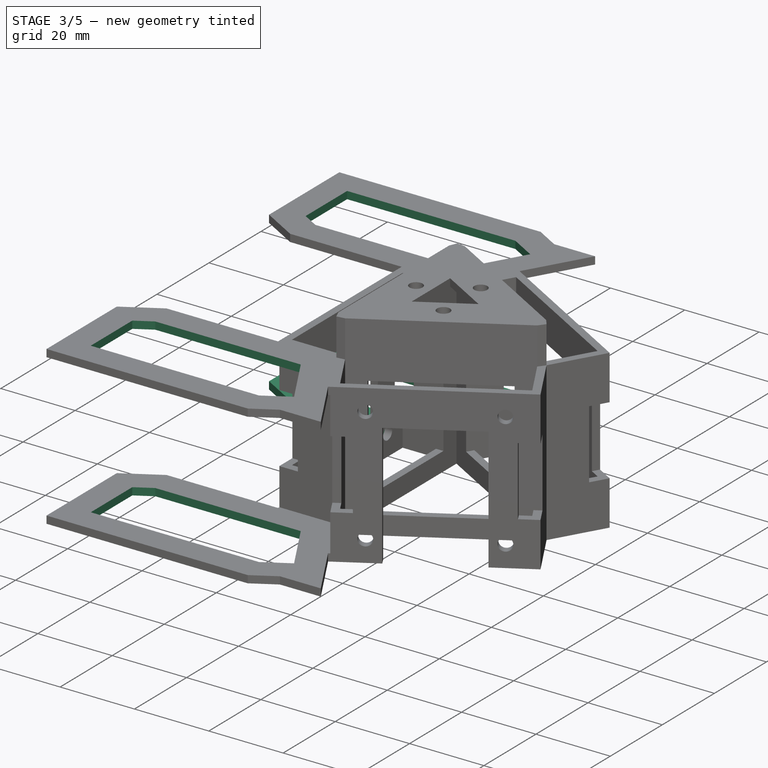
[diagram: stage 3 of 5 — iso view after this stage's code; geometry added in this stage tinted green]
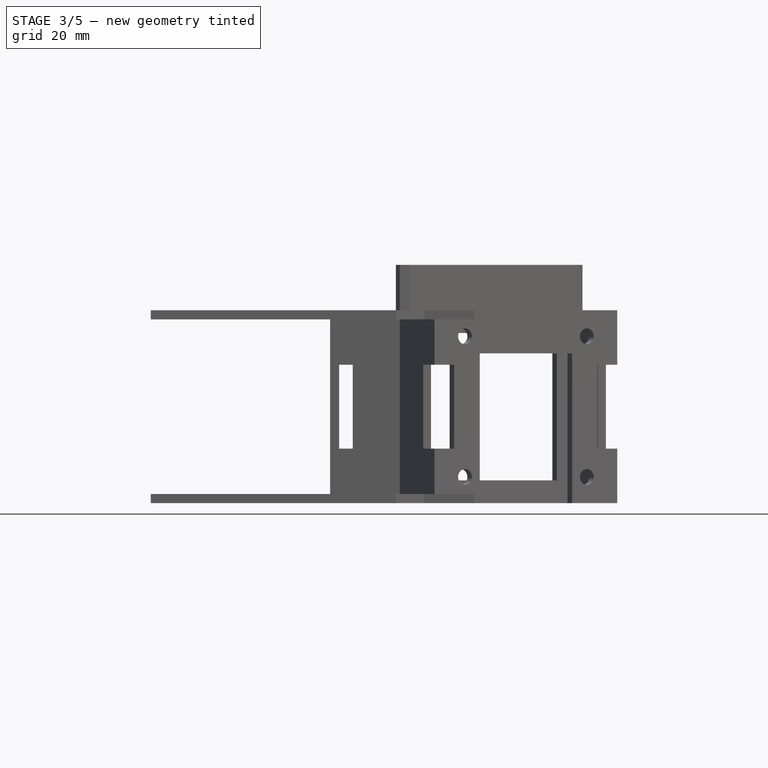
[diagram: stage 3 of 5 — front view after this stage's code; geometry added in this stage tinted green]
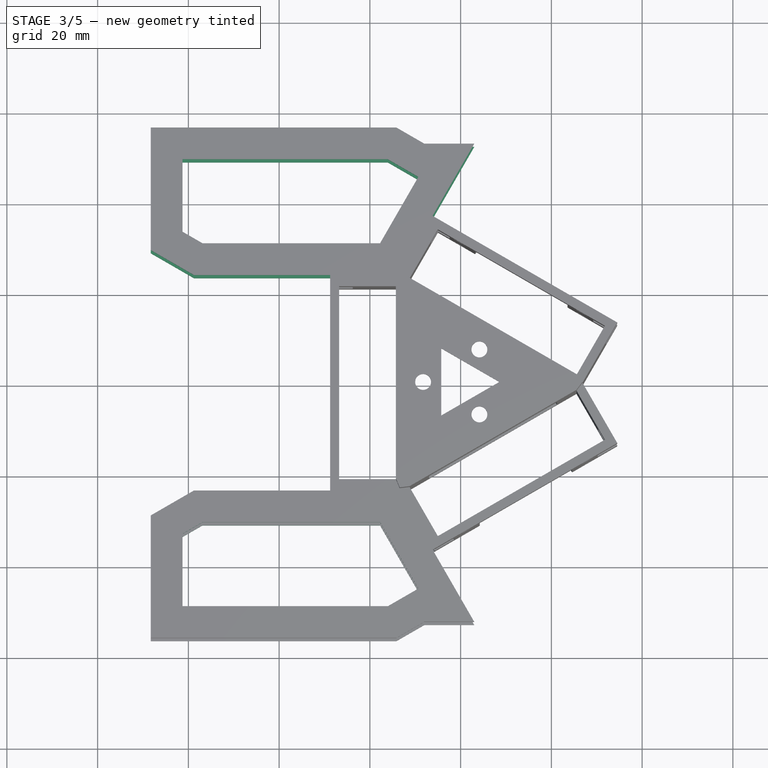
[diagram: stage 3 of 5 — top view after this stage's code; geometry added in this stage tinted green]
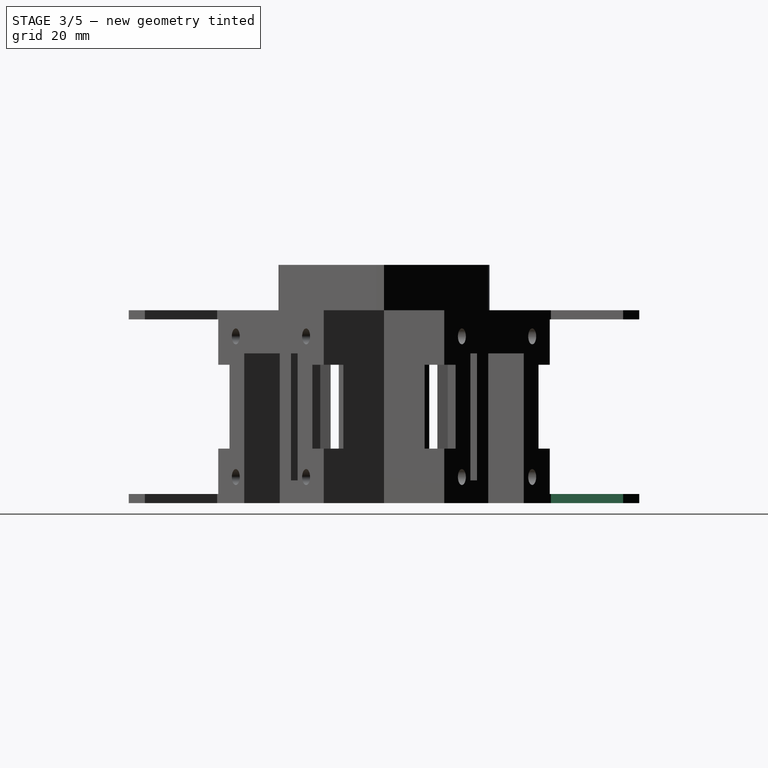
[diagram: stage 3 of 5 — right view after this stage's code; geometry added in this stage tinted green]
FEATURE [PartDesign::Pad] Pad006
  BaseFeature = -> Pad005
  Direction = (0,0,-1)
  Length = 2
  Length2 = 10
  Profile = -> MirroredSketch001
  ReferenceAxis = -> MirroredSketch001 [N_Axis]
  Reversed = true
  Type = 0
FEATURE [Sketcher::SketchObject] Sketch011
  ExternalGeometry = -> [Pad006]
  FullyConstrained = true
  MapMode = 5
  Placement = pos=(0,0,42.5) rot=(0,0,1;0rad)
  Support = -> [Pad006]
  sketch-geometry (6):
    g0: LineSegment StartX=-61.295 StartY=49.25 StartZ=0 EndX=-61.295 EndY=33.2915 EndZ=0
    g1: LineSegment StartX=-61.295 StartY=33.2915 StartZ=0 EndX=-56.893 EndY=30.75 EndZ=0
    g2: LineSegment StartX=-56.893 StartY=30.75 StartZ=0 EndX=-17.7535 EndY=30.75 EndZ=0
    g3: LineSegment StartX=-17.7535 StartY=30.75 StartZ=0 EndX=-9.31218 EndY=45.3708 EndZ=0
    g4: LineSegment StartX=-9.31218 StartY=45.3708 StartZ=0 EndX=-16.0311 EndY=49.25 EndZ=0
    g5: LineSegment StartX=-16.0311 StartY=49.25 StartZ=0 EndX=-61.295 EndY=49.25 EndZ=0
  constraints (18):
    c: Vertical(g0)
    c: Coincident(g0,g1)
    c: Coincident(g1,g2)
    c: Horizontal(g2)
    c: Coincident(g2,g3)
    c: Coincident(g3,g4)
    c: Coincident(g4,g5)
    c: Coincident(g5,g0)
    c: Horizontal(g5)
    c: Distance(g0,g-3) = 7
    c: Distance(g0,g-4) = 7
    c: Distance(g1,g-6) = 7
    c: Parallel(g1,g-5)
    c: Parallel(g4,g-8)
    c: Distance(g3,g-7) = 7
    c: Parallel(g3,g-7)
    c: Distance(g-8,g4) = 7
    c: Distance(g0,g-5) = 7
FEATURE [Sketcher::SketchObject] MirroredSketch002
  FullyConstrained = false
  Placement = pos=(0,0,42.5) rot=(0,0,1;0rad)
  sketch-geometry (6):
    g0: LineSegment StartX=-61.295 StartY=-49.25 StartZ=0 EndX=-61.295 EndY=-33.2915 EndZ=0
    g1: LineSegment StartX=-61.295 StartY=-33.2915 StartZ=0 EndX=-56.893 EndY=-30.75 EndZ=0
    g2: LineSegment StartX=-56.893 StartY=-30.75 StartZ=0 EndX=-17.7535 EndY=-30.75 EndZ=0
    g3: LineSegment StartX=-17.7535 StartY=-30.75 StartZ=0 EndX=-9.31218 EndY=-45.3708 EndZ=0
    g4: LineSegment StartX=-9.31218 StartY=-45.3708 StartZ=0 EndX=-16.0311 EndY=-49.25 EndZ=0
    g5: LineSegment StartX=-16.0311 StartY=-49.25 StartZ=0 EndX=-61.295 EndY=-49.25 EndZ=0
  constraints (9):
    c: Vertical(g0)
    c: Coincident(g0,g1)
    c: Coincident(g1,g2)
    c: Horizontal(g2)
    c: Coincident(g2,g3)
    c: Coincident(g3,g4)
    c: Coincident(g4,g5)
    c: Coincident(g5,g0)
    c: Horizontal(g5)
FEATURE [PartDesign::Pocket] Pocket006
  BaseFeature = -> Pad006
  Direction = (0,0,-1)
  Length = 2
  Length2 = 5
  Profile = -> Sketch011
  ReferenceAxis = -> Sketch011 [N_Axis]
  Type = 0
FEATURE [PartDesign::Pocket] Pocket007
  BaseFeature = -> Pocket006
  Direction = (0,0,-1)
  Length = 2
  Length2 = 5
  Profile = -> MirroredSketch002
  ReferenceAxis = -> MirroredSketch002 [N_Axis]
  Type = 0
FEATURE [Sketcher::SketchObject] Sketch012
  ExternalGeometry = -> [Pocket007]
  FullyConstrained = true
  MapMode = 5
  Placement = pos=(0,0,2) rot=(0,0,1;0rad)
  Support = -> [Pocket007]
  sketch-geometry (6):
    g0: LineSegment StartX=-61.295 StartY=49.25 StartZ=0 EndX=-16.0311 EndY=49.25 EndZ=0
    g1: LineSegment StartX=-16.0311 StartY=49.25 StartZ=0 EndX=-9.31218 EndY=45.3708 EndZ=0
    g2: LineSegment StartX=-9.31218 StartY=45.3708 StartZ=0 EndX=-17.7535 EndY=30.75 EndZ=0
    g3: LineSegment StartX=-17.7535 StartY=30.75 StartZ=0 EndX=-56.893 EndY=30.75 EndZ=0
    g4: LineSegment StartX=-56.893 StartY=30.75 StartZ=0 EndX=-61.295 EndY=33.2915 EndZ=0
    g5: LineSegment StartX=-61.295 StartY=33.2915 StartZ=0 EndX=-61.295 EndY=49.25 EndZ=0
  constraints (12):
    c: Coincident(g-3,g0)
    c: Coincident(g0,g-4)
    c: Coincident(g0,g1)
    c: Coincident(g1,g-5)
    c: Coincident(g1,g2)
    c: Coincident(g2,g-5)
    c: Coincident(g2,g3)
    c: Coincident(g3,g-6)
    c: Coincident(g3,g4)
    c: Coincident(g4,g-6)
    c: Coincident(g4,g5)
    c: Coincident(g5,g0)
FEATURE [Sketcher::SketchObject] MirroredSketch003
  FullyConstrained = false
  Placement = pos=(0,0,2) rot=(0,0,1;0rad)
  sketch-geometry (6):
    g0: LineSegment StartX=-61.295 StartY=-49.25 StartZ=0 EndX=-16.0311 EndY=-49.25 EndZ=0
    g1: LineSegment StartX=-16.0311 StartY=-49.25 StartZ=0 EndX=-9.31218 EndY=-45.3708 EndZ=0
    g2: LineSegment StartX=-9.31218 StartY=-45.3708 StartZ=0 EndX=-17.7535 EndY=-30.75 EndZ=0
    g3: LineSegment StartX=-17.7535 StartY=-30.75 StartZ=0 EndX=-56.893 EndY=-30.75 EndZ=0
    g4: LineSegment StartX=-56.893 StartY=-30.75 StartZ=0 EndX=-61.295 EndY=-33.2915 EndZ=0
    g5: LineSegment StartX=-61.295 StartY=-33.2915 StartZ=0 EndX=-61.295 EndY=-49.25 EndZ=0
  constraints (6):
    c: Coincident(g0,g1)
    c: Coincident(g1,g2)
    c: Coincident(g2,g3)
    c: Coincident(g3,g4)
    c: Coincident(g4,g5)
    c: Coincident(g5,g0)
FEATURE [PartDesign::Pocket] Pocket008
  BaseFeature = -> Pocket007
  Direction = (0,0,-1)
  Length = 2
  Length2 = 5
  Profile = -> Sketch012
  ReferenceAxis = -> Sketch012 [N_Axis]
  Type = 0
FEATURE [PartDesign::Pocket] Pocket009
  BaseFeature = -> Pocket008
  Direction = (0,0,-1)
  Length = 2
  Length2 = 5
  Profile = -> MirroredSketch003
  ReferenceAxis = -> MirroredSketch003 [N_Axis]
  Type = 0
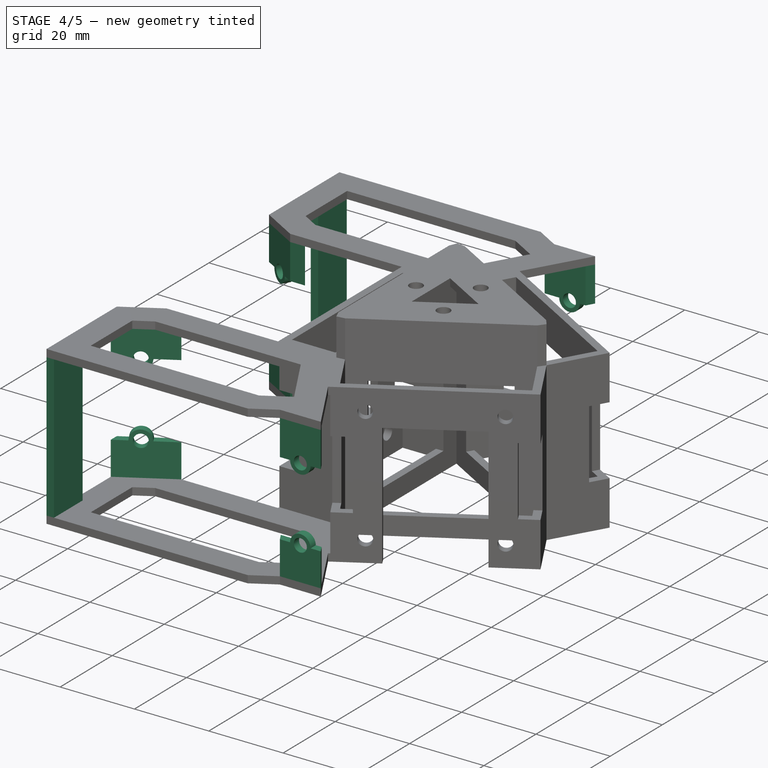
[diagram: stage 4 of 5 — iso view after this stage's code; geometry added in this stage tinted green]
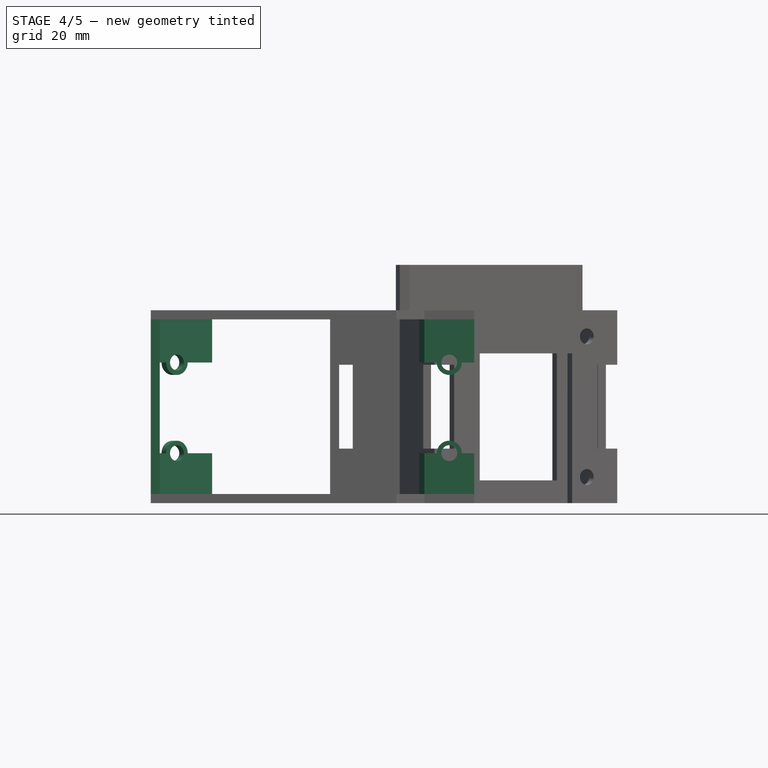
[diagram: stage 4 of 5 — front view after this stage's code; geometry added in this stage tinted green]
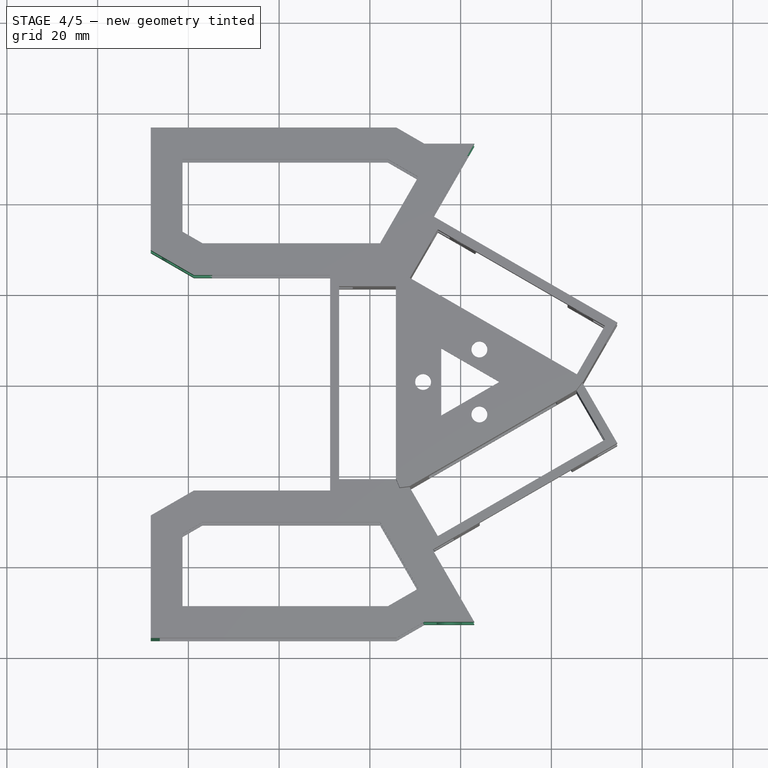
[diagram: stage 4 of 5 — top view after this stage's code; geometry added in this stage tinted green]
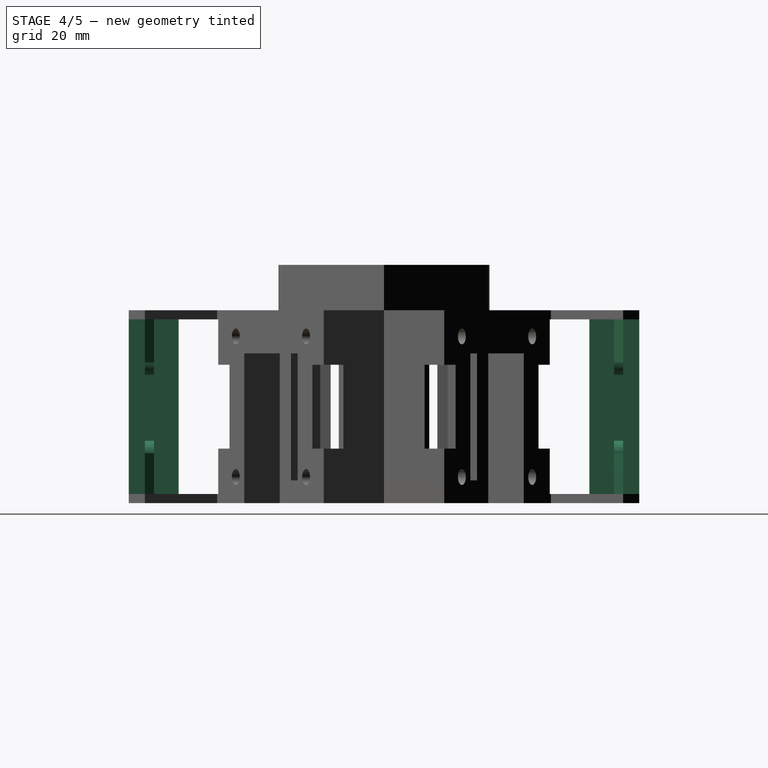
[diagram: stage 4 of 5 — right view after this stage's code; geometry added in this stage tinted green]
FEATURE [Sketcher::SketchObject] Sketch013
  ExternalGeometry = -> [Pocket009]
  FullyConstrained = true
  MapMode = 5
  Placement = pos=(0,0,42.5) rot=(0,0,1;0rad)
  Support = -> [Pocket009]
  sketch-geometry (12):
    g0: LineSegment StartX=-8 StartY=52.6962 StartZ=0 EndX=3 EndY=52.6962 EndZ=0
    g1: LineSegment StartX=3 StartY=52.6962 StartZ=0 EndX=1.8453 EndY=50.6962 EndZ=0
    g2: LineSegment StartX=1.8453 StartY=50.6962 StartZ=0 EndX=-9.1547 EndY=50.6962 EndZ=0
    g3: LineSegment StartX=-9.1547 StartY=50.6962 StartZ=0 EndX=-8 EndY=52.6962 EndZ=0
    g4: LineSegment StartX=-68.295 StartY=56.25 StartZ=0 EndX=-66.295 EndY=56.25 EndZ=0
    g5: LineSegment StartX=-66.295 StartY=56.25 StartZ=0 EndX=-66.295 EndY=45.25 EndZ=0
    g6: LineSegment StartX=-66.295 StartY=45.25 StartZ=0 EndX=-68.295 EndY=45.25 EndZ=0
    g7: LineSegment StartX=-68.295 StartY=45.25 StartZ=0 EndX=-68.295 EndY=56.25 EndZ=0
    g8: LineSegment StartX=-68.295 StartY=31.5594 StartZ=0 EndX=-68.295 EndY=29.25 EndZ=0
    g9: LineSegment StartX=-68.295 StartY=29.25 StartZ=0 EndX=-58.7687 EndY=23.75 EndZ=0
    g10: LineSegment StartX=-58.7687 StartY=23.75 StartZ=0 EndX=-54.7687 EndY=23.75 EndZ=0
    g11: LineSegment StartX=-54.7687 StartY=23.75 StartZ=0 EndX=-68.295 EndY=31.5594 EndZ=0
  constraints (31):
    c: Coincident(g-3,g0)
    c: Coincident(g0,g-4)
    c: Coincident(g0,g1)
    c: PointOnObject(g1,g-4)
    c: Coincident(g1,g2)
    c: Horizontal(g2)
    c: Coincident(g2,g3)
    c: Coincident(g3,g0)
    c: Parallel(g3,g1)
    c: Distance(g0,g2) = 2
    c: Coincident(g4,g5)
    c: Coincident(g5,g6)
    c: Coincident(g6,g7)
    c: Coincident(g7,g4)
    c: Horizontal(g4)
    c: Horizontal(g6)
    c: Vertical(g5)
    c: Vertical(g7)
    c: Coincident(g4,g-8)
    c: Distance(g4) = 2
    c: Distance(g7) = 11
    c: PointOnObject(g8,g-6)
    c: Coincident(g8,g-6)
    c: Coincident(g8,g9)
    c: Coincident(g9,g-7)
    c: Coincident(g9,g10)
    c: PointOnObject(g10,g-7)
    c: Coincident(g10,g11)
    c: Coincident(g11,g8)
    c: Parallel(g11,g9)
    c: Distance(g9,g11) = 2
FEATURE [Sketcher::SketchObject] MirroredSketch004
  FullyConstrained = false
  Placement = pos=(0,0,42.5) rot=(0,0,1;0rad)
  sketch-geometry (12):
    g0: LineSegment StartX=-8 StartY=-52.6962 StartZ=0 EndX=3 EndY=-52.6962 EndZ=0
    g1: LineSegment StartX=3 StartY=-52.6962 StartZ=0 EndX=1.8453 EndY=-50.6962 EndZ=0
    g2: LineSegment StartX=1.8453 StartY=-50.6962 StartZ=0 EndX=-9.1547 EndY=-50.6962 EndZ=0
    g3: LineSegment StartX=-9.1547 StartY=-50.6962 StartZ=0 EndX=-8 EndY=-52.6962 EndZ=0
    g4: LineSegment StartX=-68.295 StartY=-56.25 StartZ=0 EndX=-66.295 EndY=-56.25 EndZ=0
    g5: LineSegment StartX=-66.295 StartY=-56.25 StartZ=0 EndX=-66.295 EndY=-45.25 EndZ=0
    g6: LineSegment StartX=-66.295 StartY=-45.25 StartZ=0 EndX=-68.295 EndY=-45.25 EndZ=0
    g7: LineSegment StartX=-68.295 StartY=-45.25 StartZ=0 EndX=-68.295 EndY=-56.25 EndZ=0
    g8: LineSegment StartX=-68.295 StartY=-31.5594 StartZ=0 EndX=-68.295 EndY=-29.25 EndZ=0
    g9: LineSegment StartX=-68.295 StartY=-29.25 StartZ=0 EndX=-58.7687 EndY=-23.75 EndZ=0
    g10: LineSegment StartX=-58.7687 StartY=-23.75 StartZ=0 EndX=-54.7687 EndY=-23.75 EndZ=0
    g11: LineSegment StartX=-54.7687 StartY=-23.75 StartZ=0 EndX=-68.295 EndY=-31.5594 EndZ=0
  constraints (23):
    c: Coincident(g0,g1)
    c: Coincident(g1,g2)
    c: Horizontal(g2)
    c: Coincident(g2,g3)
    c: Coincident(g3,g0)
    c: Parallel(g3,g1)
    c: Distance(g0,g2) = 2
    c: Coincident(g4,g5)
    c: Coincident(g5,g6)
    c: Coincident(g6,g7)
    c: Coincident(g7,g4)
    c: Horizontal(g4)
    c: Horizontal(g6)
    c: Vertical(g5)
    c: Vertical(g7)
    c: Distance(g4) = 2
    c: Distance(g7) = 11
    c: Coincident(g8,g9)
    c: Coincident(g9,g10)
    c: Coincident(g10,g11)
    c: Coincident(g11,g8)
    c: Parallel(g11,g9)
    c: Distance(g9,g11) = 2
FEATURE [PartDesign::Pad] Pad007
  BaseFeature = -> Pocket009
  Direction = (0,0,1)
  Length = 42.5
  Length2 = 10
  Profile = -> Sketch013
  ReferenceAxis = -> Sketch013 [N_Axis]
  Reversed = true
  Type = 0
FEATURE [PartDesign::Pad] Pad008
  BaseFeature = -> Pad007
  Direction = (0,0,1)
  Length = 42.5
  Length2 = 10
  Profile = -> MirroredSketch004
  ReferenceAxis = -> MirroredSketch004 [N_Axis]
  Reversed = true
  Type = 0
FEATURE [Sketcher::SketchObject] Sketch014
  ExternalGeometry = -> [Pad008]
  FullyConstrained = false
  MapMode = 5
  Placement = pos=(0,-52.6962,0) rot=(1,0,0;1.5708rad)
  Support = -> [Pad008]
  sketch-geometry (11):
    g0: LineSegment StartX=-2.5 StartY=42.5 StartZ=0 EndX=-2.5 EndY=0 EndZ=0
    g1: Circle CenterX=-2.5 CenterY=31 CenterZ=0 NormalX=0 NormalY=0 NormalZ=1 AngleXU=0 Radius=1.75
    g2: ArcOfCircle CenterX=-2.5 CenterY=31 CenterZ=0 NormalX=0 NormalY=0 NormalZ=1 AngleXU=0 Radius=2.75 StartAngle=3.14159 EndAngle=6.28319
    g3: Circle CenterX=-2.5 CenterY=11 CenterZ=0 NormalX=0 NormalY=0 NormalZ=1 AngleXU=0 Radius=1.75
    g4: ArcOfCircle CenterX=-2.5 CenterY=11 CenterZ=0 NormalX=0 NormalY=0 NormalZ=1 AngleXU=0 Radius=2.75 StartAngle=0 EndAngle=3.14159
    g5: LineSegment StartX=-9.1547 StartY=31 StartZ=0 EndX=-5.25 EndY=31 EndZ=0
    g6: LineSegment StartX=3 StartY=31 StartZ=0 EndX=3 EndY=11 EndZ=0
    g7: LineSegment StartX=3 StartY=11 StartZ=0 EndX=0.25 EndY=11 EndZ=0
    g8: LineSegment StartX=-9.1547 StartY=11 StartZ=0 EndX=-9.1547 EndY=31 EndZ=0
    g9: LineSegment StartX=0.25 StartY=31 StartZ=0 EndX=3 EndY=31 EndZ=0
    g10: LineSegment StartX=-5.25 StartY=11 StartZ=0 EndX=-9.1547 EndY=11 EndZ=0
  constraints (30):
    c: PointOnObject(g0,g-4)
    c: PointOnObject(g0,g-1)
    c: Vertical(g0)
    c: Distance(g0,g-5) = 5.5
    c: PointOnObject(g1,g0)
    c: Coincident(g2,g1)
    c: PointOnObject(g3,g0)
    c: Coincident(g4,g3)
    c: Diameter(g2) = 5.5
    c: Diameter(g4) = 5.5
    c: Diameter(g1) = 3.5
    c: Diameter(g3) = 3.5
    c: Coincident(g9,g6)
    c: Coincident(g6,g7)
    c: Coincident(g10,g8)
    c: Coincident(g8,g5)
    c: Horizontal(g5)
    c: Horizontal(g7)
    c: Vertical(g6)
    c: Vertical(g8)
    c: PointOnObject(g5,g-3)
    c: PointOnObject(g6,g-5)
    c: PointOnObject(g1,g5)
    c: PointOnObject(g3,g7)
    c: Distance(g1,g-4) = 11.5
    c: Distance(g1,g3) = 20
    c: Coincident(g5,g2)
    c: Coincident(g2,g9)
    c: Coincident(g4,g7)
    c: Coincident(g4,g10)
FEATURE [PartDesign::Pocket] Pocket010
  BaseFeature = -> Pad008
  Direction = (0,1,-2e-16)
  Length = 2
  Length2 = 5
  Profile = -> Sketch014
  ReferenceAxis = -> Sketch014 [N_Axis]
  Type = 0
FEATURE [Sketcher::SketchObject] Sketch015
  ExternalGeometry = -> [Pocket010]
  FullyConstrained = false
  MapMode = 5
  Placement = pos=(0,52.6962,0) rot=(0,0.707107,0.707107;3.14159rad)
  Support = -> [Pocket010]
  sketch-geometry (11):
    g0: LineSegment StartX=2.5 StartY=42.5 StartZ=0 EndX=2.5 EndY=0 EndZ=0
    g1: Circle CenterX=2.5 CenterY=31 CenterZ=0 NormalX=0 NormalY=0 NormalZ=1 AngleXU=0 Radius=1.75
    g2: ArcOfCircle CenterX=2.5 CenterY=31 CenterZ=0 NormalX=0 NormalY=0 NormalZ=1 AngleXU=0 Radius=2.75 StartAngle=3.14159 EndAngle=6.28319
    g3: Circle CenterX=2.5 CenterY=11 CenterZ=0 NormalX=0 NormalY=0 NormalZ=1 AngleXU=0 Radius=1.75
    g4: ArcOfCircle CenterX=2.5 CenterY=11 CenterZ=0 NormalX=0 NormalY=0 NormalZ=1 AngleXU=0 Radius=2.75 StartAngle=0 EndAngle=3.14159
    g5: LineSegment StartX=-3 StartY=31 StartZ=0 EndX=-0.25 EndY=31 EndZ=0
    g6: LineSegment StartX=9.1547 StartY=31 StartZ=0 EndX=9.1547 EndY=11 EndZ=0
    g7: LineSegment StartX=9.1547 StartY=11 StartZ=0 EndX=5.25 EndY=11 EndZ=0
    g8: LineSegment StartX=-3 StartY=11 StartZ=0 EndX=-3 EndY=31 EndZ=0
    g9: LineSegment StartX=-0.25 StartY=11 StartZ=0 EndX=-3 EndY=11 EndZ=0
    g10: LineSegment StartX=5.25 StartY=31 StartZ=0 EndX=9.1547 EndY=31 EndZ=0
  constraints (30):
    c: PointOnObject(g0,g-3)
    c: PointOnObject(g0,g-1)
    c: Vertical(g0)
    c: Distance(g-4,g0) = 5.5
    c: PointOnObject(g1,g0)
    c: Coincident(g2,g1)
    c: PointOnObject(g3,g0)
    c: Coincident(g4,g3)
    c: Coincident(g10,g6)
    c: Coincident(g6,g7)
    c: Coincident(g9,g8)
    c: Coincident(g8,g5)
    c: Horizontal(g5)
    c: Horizontal(g7)
    c: Vertical(g6)
    c: Vertical(g8)
    c: PointOnObject(g5,g-4)
    c: PointOnObject(g6,g-5)
    c: PointOnObject(g1,g5)
    c: PointOnObject(g3,g7)
    c: Distance(g1,g-3) = 11.5
    c: Distance(g1,g3) = 20
    c: Diameter(g2) = 5.5
    c: Diameter(g1) = 3.5
    c: Diameter(g4) = 5.5
    c: Diameter(g3) = 3.5
    c: Coincident(g9,g4)
    c: Coincident(g7,g4)
    c: Coincident(g10,g2)
    c: Coincident(g5,g2)
FEATURE [PartDesign::Pocket] Pocket011
  BaseFeature = -> Pocket010
  Direction = (0,-1,-2e-16)
  Length = 2
  Length2 = 5
  Profile = -> Sketch015
  ReferenceAxis = -> Sketch015 [N_Axis]
  Type = 0
FEATURE [Sketcher::SketchObject] Sketch016
  ExternalGeometry = -> [Pocket011]
  FullyConstrained = false
  MapMode = 5
  Placement = pos=(-4.40812,-7.63509,0) rot=(0.935113,-0.250563,-0.250563;1.63783rad)
  Support = -> [Pocket011]
  sketch-geometry (11):
    g0: LineSegment StartX=-68.2702 StartY=42.5 StartZ=0 EndX=-68.2702 EndY=0 EndZ=0
    g1: Circle CenterX=-68.2702 CenterY=31 CenterZ=0 NormalX=0 NormalY=0 NormalZ=1 AngleXU=0 Radius=1.75
    g2: ArcOfCircle CenterX=-68.2702 CenterY=31 CenterZ=0 NormalX=0 NormalY=0 NormalZ=1 AngleXU=0 Radius=2.75 StartAngle=3.14159 EndAngle=6.28319
    g3: Circle CenterX=-68.2702 CenterY=11 CenterZ=0 NormalX=0 NormalY=0 NormalZ=1 AngleXU=0 Radius=1.75
    g4: ArcOfCircle CenterX=-68.2702 CenterY=11 CenterZ=0 NormalX=0 NormalY=0 NormalZ=1 AngleXU=0 Radius=2.75 StartAngle=-1.8e-15 EndAngle=3.14159
    g5: LineSegment StartX=-74.9249 StartY=31 StartZ=0 EndX=-71.0202 EndY=31 EndZ=0
    g6: LineSegment StartX=-59.3061 StartY=31 StartZ=0 EndX=-59.3061 EndY=11 EndZ=0
    g7: LineSegment StartX=-59.3061 StartY=11 StartZ=0 EndX=-65.5202 EndY=11 EndZ=0
    g8: LineSegment StartX=-74.9249 StartY=11 StartZ=0 EndX=-74.9249 EndY=31 EndZ=0
    g9: LineSegment StartX=-65.5202 StartY=31 StartZ=0 EndX=-59.3061 EndY=31 EndZ=0
    g10: LineSegment StartX=-71.0202 StartY=11 StartZ=0 EndX=-74.9249 EndY=11 EndZ=0
  constraints (32):
    c: PointOnObject(g0,g-5)
    c: PointOnObject(g0,g-1)
    c: Vertical(g0)
    c: Distance(g-4,g0) = 5.5
    c: PointOnObject(g1,g0)
    c: Coincident(g2,g1)
    c: PointOnObject(g3,g0)
    c: Coincident(g4,g3)
    c: Diameter(g2) = 5.5
    c: Diameter(g1) = 3.5
    c: Diameter(g3) = 3.5
    c: Diameter(g4) = 5.5
    c: Distance(g1,g-5) = 11.5
    c: Distance(g1,g3) = 20
    c: Coincident(g9,g6)
    c: Coincident(g6,g7)
    c: Coincident(g10,g8)
    c: Coincident(g8,g5)
    c: Horizontal(g5)
    c: Horizontal(g7)
    c: Vertical(g6)
    c: Vertical(g8)
    c: PointOnObject(g5,g-3)
    c: PointOnObject(g6,g-6)
    c: PointOnObject(g1,g5)
    c: PointOnObject(g3,g7)
    c: PointOnObject(g2,g5)
    c: Coincident(g5,g2)
    c: PointOnObject(g9,g2)
    c: PointOnObject(g4,g7)
    c: Coincident(g7,g4)
    c: PointOnObject(g10,g4)
FEATURE [PartDesign::Pocket] Pocket012
  BaseFeature = -> Pocket011
  Direction = (0.5,0.866025,-1e-16)
  Length = 2
  Length2 = 5
  Profile = -> Sketch016
  ReferenceAxis = -> Sketch016 [N_Axis]
  Type = 0
FEATURE [Sketcher::SketchObject] Sketch017
  ExternalGeometry = -> [Pocket012]
  FullyConstrained = false
  MapMode = 5
  Placement = pos=(-4.40812,7.63509,0) rot=(-0.186157,0.694747,0.694747;3.50969rad)
  Support = -> [Pocket012]
  sketch-geometry (11):
    g0: LineSegment StartX=68.2702 StartY=42.5 StartZ=0 EndX=68.2702 EndY=0 EndZ=0
    g1: Circle CenterX=68.2702 CenterY=31 CenterZ=0 NormalX=0 NormalY=0 NormalZ=1 AngleXU=0 Radius=1.75
    g2: ArcOfCircle CenterX=68.2702 CenterY=31 CenterZ=0 NormalX=0 NormalY=0 NormalZ=1 AngleXU=0 Radius=2.75 StartAngle=3.14159 EndAngle=6.28319
    g3: Circle CenterX=68.2702 CenterY=11 CenterZ=0 NormalX=0 NormalY=0 NormalZ=1 AngleXU=0 Radius=1.75
    g4: ArcOfCircle CenterX=68.2702 CenterY=11 CenterZ=0 NormalX=0 NormalY=0 NormalZ=1 AngleXU=0 Radius=2.75 StartAngle=-1.8e-15 EndAngle=3.14159
    g5: LineSegment StartX=59.3061 StartY=31 StartZ=0 EndX=65.5202 EndY=31 EndZ=0
    g6: LineSegment StartX=74.9249 StartY=31 StartZ=0 EndX=74.9249 EndY=11 EndZ=0
    g7: LineSegment StartX=74.9249 StartY=11 StartZ=0 EndX=71.0202 EndY=11 EndZ=0
    g8: LineSegment StartX=59.3061 StartY=11 StartZ=0 EndX=59.3061 EndY=31 EndZ=0
    g9: LineSegment StartX=71.0202 StartY=31 StartZ=0 EndX=74.9249 EndY=31 EndZ=0
    g10: LineSegment StartX=65.5202 StartY=11 StartZ=0 EndX=59.3061 EndY=11 EndZ=0
  constraints (32):
    c: PointOnObject(g0,g-5)
    c: PointOnObject(g0,g-1)
    c: Vertical(g0)
    c: Distance(g-3,g0) = 5.5
    c: PointOnObject(g1,g0)
    c: Coincident(g2,g1)
    c: PointOnObject(g3,g0)
    c: Coincident(g4,g3)
    c: Diameter(g1) = 3.5
    c: Diameter(g2) = 5.5
    c: Diameter(g3) = 3.5
    c: Diameter(g4) = 5.5
    c: Distance(g1,g-5) = 11.5
    c: Distance(g1,g3) = 20
    c: Coincident(g9,g6)
    c: Coincident(g6,g7)
    c: Coincident(g10,g8)
    c: Coincident(g8,g5)
    c: Horizontal(g5)
    c: Horizontal(g7)
    c: Vertical(g6)
    c: Vertical(g8)
    c: PointOnObject(g5,g-6)
    c: PointOnObject(g6,g-4)
    c: PointOnObject(g1,g5)
    c: PointOnObject(g3,g7)
    c: PointOnObject(g2,g5)
    c: Coincident(g5,g2)
    c: PointOnObject(g9,g2)
    c: PointOnObject(g4,g7)
    c: Coincident(g7,g4)
    c: PointOnObject(g10,g4)
FEATURE [PartDesign::Pocket] Pocket013
  BaseFeature = -> Pocket012
  Direction = (0.5,-0.866025,2e-16)
  Length = 2
  Length2 = 5
  Profile = -> Sketch017
  ReferenceAxis = -> Sketch017 [N_Axis]
  Type = 0
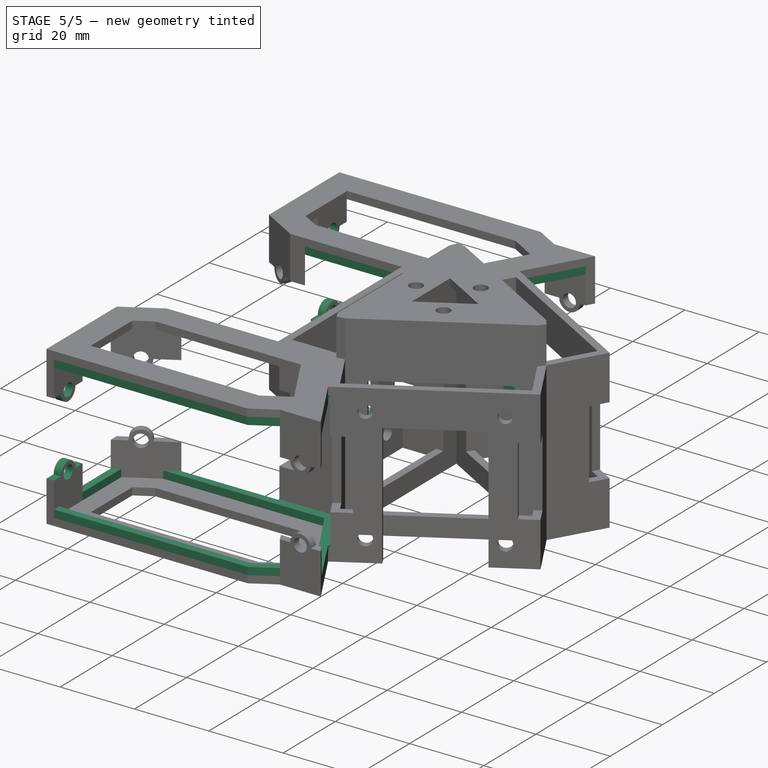
[diagram: stage 5 of 5 — iso view after this stage's code; geometry added in this stage tinted green]
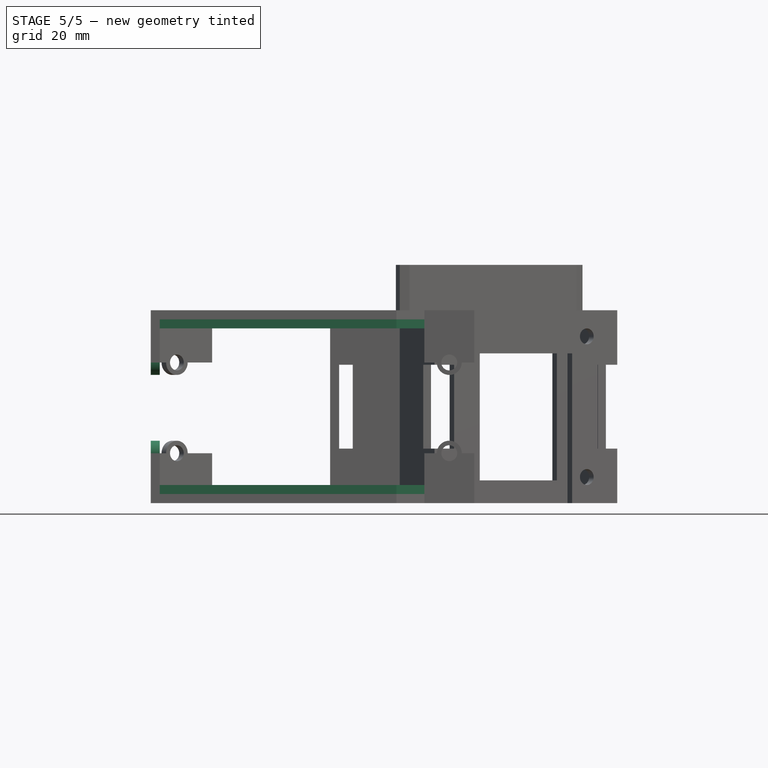
[diagram: stage 5 of 5 — front view after this stage's code; geometry added in this stage tinted green]
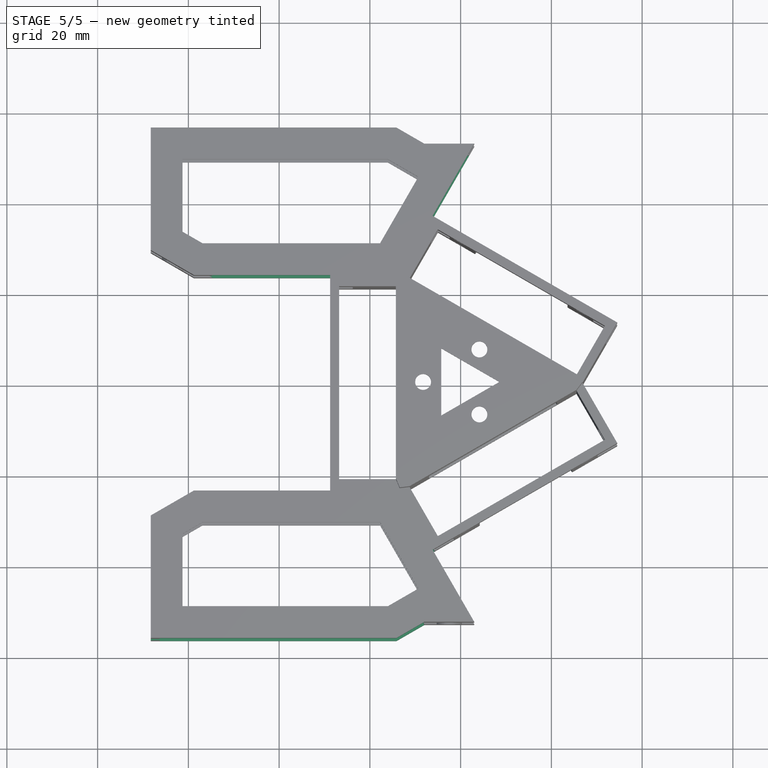
[diagram: stage 5 of 5 — top view after this stage's code; geometry added in this stage tinted green]
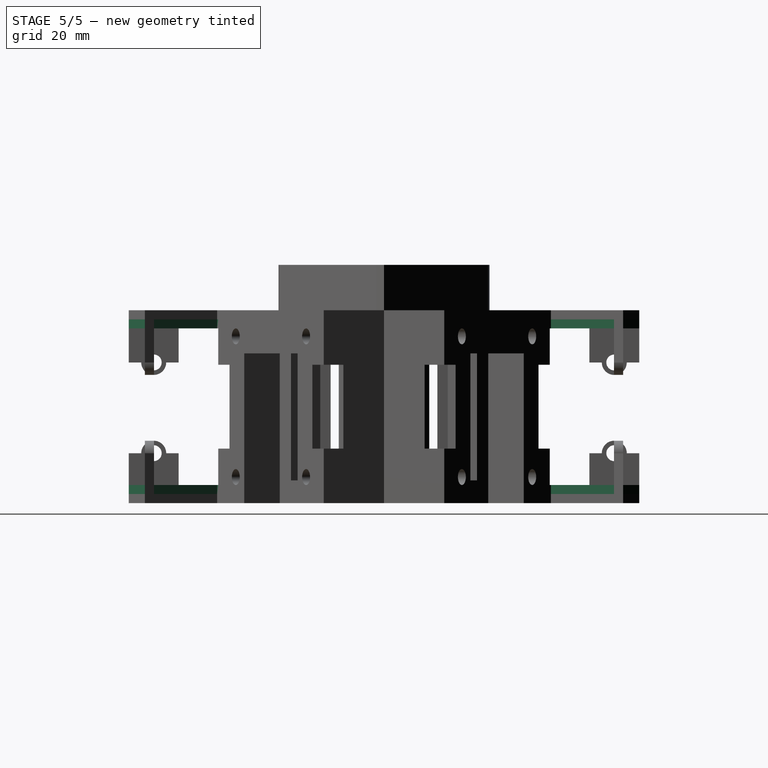
[diagram: stage 5 of 5 — right view after this stage's code; geometry added in this stage tinted green]
FEATURE [Sketcher::SketchObject] Sketch018
  ExternalGeometry = -> [Pocket013]
  FullyConstrained = false
  MapMode = 5
  Placement = pos=(-68.295,0,0) rot=(0.57735,-0.57735,-0.57735;2.0944rad)
  Support = -> [Pocket013]
  sketch-geometry (11):
    g0: LineSegment StartX=-50.75 StartY=42.5 StartZ=0 EndX=-50.75 EndY=0 EndZ=0
    g1: Circle CenterX=-50.75 CenterY=31 CenterZ=0 NormalX=0 NormalY=0 NormalZ=1 AngleXU=0 Radius=1.75
    g2: ArcOfCircle CenterX=-50.75 CenterY=31 CenterZ=0 NormalX=0 NormalY=0 NormalZ=1 AngleXU=0 Radius=2.75 StartAngle=3.14159 EndAngle=6.28319
    g3: Circle CenterX=-50.75 CenterY=11 CenterZ=0 NormalX=0 NormalY=0 NormalZ=1 AngleXU=0 Radius=1.75
    g4: ArcOfCircle CenterX=-50.75 CenterY=11 CenterZ=0 NormalX=0 NormalY=0 NormalZ=1 AngleXU=0 Radius=2.75 StartAngle=0 EndAngle=3.14159
    g5: LineSegment StartX=-56.25 StartY=31 StartZ=0 EndX=-53.5 EndY=31 EndZ=0
    g6: LineSegment StartX=-45.25 StartY=31 StartZ=0 EndX=-45.25 EndY=11 EndZ=0
    g7: LineSegment StartX=-45.25 StartY=11 StartZ=0 EndX=-48 EndY=11 EndZ=0
    g8: LineSegment StartX=-56.25 StartY=11 StartZ=0 EndX=-56.25 EndY=31 EndZ=0
    g9: LineSegment StartX=-53.5 StartY=11 StartZ=0 EndX=-56.25 EndY=11 EndZ=0
    g10: LineSegment StartX=-48 StartY=31 StartZ=0 EndX=-45.25 EndY=31 EndZ=0
  constraints (30):
    c: PointOnObject(g0,g-3)
    c: PointOnObject(g0,g-1)
    c: Vertical(g0)
    c: Distance(g-4,g0) = 5.5
    c: PointOnObject(g1,g0)
    c: Coincident(g2,g1)
    c: PointOnObject(g3,g0)
    c: Coincident(g4,g3)
    c: Diameter(g2) = 5.5
    c: Diameter(g4) = 5.5
    c: Diameter(g1) = 3.5
    c: Diameter(g3) = 3.5
    c: Distance(g1,g-3) = 11.5
    c: Distance(g1,g3) = 20
    c: Coincident(g10,g6)
    c: Coincident(g6,g7)
    c: Coincident(g9,g8)
    c: Coincident(g8,g5)
    c: Horizontal(g5)
    c: Horizontal(g7)
    c: Vertical(g6)
    c: Vertical(g8)
    c: PointOnObject(g5,g-4)
    c: PointOnObject(g6,g-5)
    c: PointOnObject(g1,g5)
    c: PointOnObject(g3,g7)
    c: Coincident(g9,g4)
    c: Coincident(g7,g4)
    c: Coincident(g10,g2)
    c: Coincident(g5,g2)
FEATURE [Sketcher::SketchObject] MirroredSketch006
  FullyConstrained = false
  Placement = pos=(-68.295,0,0) rot=(0.57735,-0.57735,-0.57735;2.0944rad)
  sketch-geometry (11):
    g0: LineSegment StartX=50.75 StartY=42.5 StartZ=0 EndX=50.75 EndY=0 EndZ=0
    g1: Circle CenterX=50.75 CenterY=31 CenterZ=0 NormalX=0 NormalY=0 NormalZ=1 AngleXU=0 Radius=1.75
    g2: ArcOfCircle CenterX=50.75 CenterY=31 CenterZ=0 NormalX=0 NormalY=0 NormalZ=1 AngleXU=0 Radius=2.75 StartAngle=3.14159 EndAngle=6.28319
    g3: Circle CenterX=50.75 CenterY=11 CenterZ=0 NormalX=0 NormalY=0 NormalZ=1 AngleXU=0 Radius=1.75
    g4: ArcOfCircle CenterX=50.75 CenterY=11 CenterZ=0 NormalX=0 NormalY=0 NormalZ=1 AngleXU=0 Radius=2.75 StartAngle=0 EndAngle=3.14159
    g5: LineSegment StartX=56.25 StartY=31 StartZ=0 EndX=53.5 EndY=31 EndZ=0
    g6: LineSegment StartX=45.25 StartY=31 StartZ=0 EndX=45.25 EndY=11 EndZ=0
    g7: LineSegment StartX=45.25 StartY=11 StartZ=0 EndX=48 EndY=11 EndZ=0
    g8: LineSegment StartX=56.25 StartY=11 StartZ=0 EndX=56.25 EndY=31 EndZ=0
    g9: LineSegment StartX=53.5 StartY=11 StartZ=0 EndX=56.25 EndY=11 EndZ=0
    g10: LineSegment StartX=48 StartY=31 StartZ=0 EndX=45.25 EndY=31 EndZ=0
  constraints (24):
    c: Vertical(g0)
    c: PointOnObject(g1,g0)
    c: Coincident(g2,g1)
    c: PointOnObject(g3,g0)
    c: Coincident(g4,g3)
    c: Diameter(g2) = 5.5
    c: Diameter(g4) = 5.5
    c: Diameter(g1) = 3.5
    c: Diameter(g3) = 3.5
    c: Distance(g1,g3) = 20
    c: Coincident(g10,g6)
    c: Coincident(g6,g7)
    c: Coincident(g9,g8)
    c: Coincident(g8,g5)
    c: Horizontal(g5)
    c: Horizontal(g7)
    c: Vertical(g6)
    c: Vertical(g8)
    c: PointOnObject(g1,g5)
    c: PointOnObject(g3,g7)
    c: Coincident(g9,g4)
    c: Coincident(g7,g4)
    c: Coincident(g10,g2)
    c: Coincident(g5,g2)
FEATURE [PartDesign::Pocket] Pocket014
  BaseFeature = -> Pocket013
  Direction = (1,0,0)
  Length = 2
  Length2 = 5
  Profile = -> Sketch018
  ReferenceAxis = -> Sketch018 [N_Axis]
  Type = 0
FEATURE [PartDesign::Pocket] Pocket015
  BaseFeature = -> Pocket014
  Direction = (1,0,0)
  Length = 2
  Length2 = 5
  Profile = -> MirroredSketch006
  ReferenceAxis = -> MirroredSketch006 [N_Axis]
  Type = 0
FEATURE [Sketcher::SketchObject] Sketch019
  ExternalGeometry = -> [Pocket015]
  FullyConstrained = true
  MapMode = 5
  Placement = pos=(0,0,42.5) rot=(0,0,1;0rad)
  Support = -> [Pocket015]
  sketch-geometry (18):
    g0: LineSegment StartX=-68.295 StartY=56.25 StartZ=0 EndX=-68.295 EndY=29.25 EndZ=0
    g1: LineSegment StartX=-68.295 StartY=29.25 StartZ=0 EndX=-58.7687 EndY=23.75 EndZ=0
    g2: LineSegment StartX=-58.7687 StartY=23.75 StartZ=0 EndX=-28.7687 EndY=23.75 EndZ=0
    g3: LineSegment StartX=-28.7687 StartY=23.75 StartZ=0 EndX=-28.7687 EndY=23.25 EndZ=0
    g4: LineSegment StartX=-28.7687 StartY=23.25 StartZ=0 EndX=-13.4234 EndY=23.25 EndZ=0
    g5: LineSegment StartX=-13.4234 StartY=23.25 StartZ=0 EndX=-5.75074 EndY=36.5394 EndZ=0
    g6: LineSegment StartX=-5.75074 StartY=36.5394 StartZ=0 EndX=-6.18376 EndY=36.7894 EndZ=0
    g7: LineSegment StartX=-6.18376 StartY=36.7894 StartZ=0 EndX=3 EndY=52.6962 EndZ=0
    g8: LineSegment StartX=3 StartY=52.6962 StartZ=0 EndX=-8 EndY=52.6962 EndZ=0
    g9: LineSegment StartX=-8 StartY=52.6962 StartZ=0 EndX=-14.1554 EndY=56.25 EndZ=0
    g10: LineSegment StartX=-14.1554 StartY=56.25 StartZ=0 EndX=-68.295 EndY=56.25 EndZ=0
    g11: LineSegment StartX=-66.295 StartY=54.25 StartZ=0 EndX=-66.295 EndY=30.4047 EndZ=0
    g12: LineSegment StartX=-66.295 StartY=30.4047 StartZ=0 EndX=-58.2328 EndY=25.75 EndZ=0
    g13: LineSegment StartX=-58.2328 StartY=25.75 StartZ=0 EndX=-14.8668 EndY=25.75 EndZ=0
    g14: LineSegment StartX=-14.8668 StartY=25.75 StartZ=0 EndX=-0.464102 EndY=50.6962 EndZ=0
    g15: LineSegment StartX=-0.464102 StartY=50.6962 StartZ=0 EndX=-9.1547 EndY=50.6962 EndZ=0
    g16: LineSegment StartX=-9.1547 StartY=50.6962 StartZ=0 EndX=-14.6913 EndY=54.25 EndZ=0
    g17: LineSegment StartX=-14.6913 StartY=54.25 StartZ=0 EndX=-66.295 EndY=54.25 EndZ=0
  constraints (42):
    c: Coincident(g-4,g0)
    c: Coincident(g0,g-5)
    c: Coincident(g0,g1)
    c: Coincident(g1,g-5)
    c: Coincident(g1,g2)
    c: Coincident(g2,g-6)
    c: Coincident(g2,g3)
    c: Coincident(g3,g-6)
    c: Coincident(g3,g4)
    c: Coincident(g4,g-7)
    c: Coincident(g4,g5)
    c: Coincident(g5,g-7)
    c: Coincident(g5,g6)
    c: Coincident(g6,g-8)
    c: Coincident(g6,g7)
    c: Coincident(g7,g-9)
    c: Coincident(g7,g8)
    c: Coincident(g8,g-9)
    c: Coincident(g8,g9)
    c: Coincident(g9,g-3)
    c: Coincident(g9,g10)
    c: Coincident(g10,g0)
    c: PointOnObject(g11,g-10)
    c: PointOnObject(g11,g-11)
    c: Vertical(g11)
    c: Coincident(g11,g12)
    c: PointOnObject(g12,g-11)
    c: Coincident(g12,g13)
    c: Horizontal(g13)
    c: Coincident(g13,g14)
    c: PointOnObject(g14,g-12)
    c: Coincident(g14,g15)
    c: Coincident(g15,g-12)
    c: Coincident(g15,g16)
    c: Coincident(g16,g17)
    c: Coincident(g17,g11)
    c: Horizontal(g17)
    c: Distance(g11,g10) = 2
    c: Distance(g12,g2) = 2
    c: Distance(g14,g7) = 2
    c: Parallel(g14,g7)
    c: Distance(g16,g9) = 2
FEATURE [Sketcher::SketchObject] MirroredSketch007
  FullyConstrained = false
  Placement = pos=(0,0,42.5) rot=(0,0,1;0rad)
  sketch-geometry (18):
    g0: LineSegment StartX=-68.295 StartY=-56.25 StartZ=0 EndX=-68.295 EndY=-29.25 EndZ=0
    g1: LineSegment StartX=-68.295 StartY=-29.25 StartZ=0 EndX=-58.7687 EndY=-23.75 EndZ=0
    g2: LineSegment StartX=-58.7687 StartY=-23.75 StartZ=0 EndX=-28.7687 EndY=-23.75 EndZ=0
    g3: LineSegment StartX=-28.7687 StartY=-23.75 StartZ=0 EndX=-28.7687 EndY=-23.25 EndZ=0
    g4: LineSegment StartX=-28.7687 StartY=-23.25 StartZ=0 EndX=-13.4234 EndY=-23.25 EndZ=0
    g5: LineSegment StartX=-13.4234 StartY=-23.25 StartZ=0 EndX=-5.75074 EndY=-36.5394 EndZ=0
    g6: LineSegment StartX=-5.75074 StartY=-36.5394 StartZ=0 EndX=-6.18376 EndY=-36.7894 EndZ=0
    g7: LineSegment StartX=-6.18376 StartY=-36.7894 StartZ=0 EndX=3 EndY=-52.6962 EndZ=0
    g8: LineSegment StartX=3 StartY=-52.6962 StartZ=0 EndX=-8 EndY=-52.6962 EndZ=0
    g9: LineSegment StartX=-8 StartY=-52.6962 StartZ=0 EndX=-14.1554 EndY=-56.25 EndZ=0
    g10: LineSegment StartX=-14.1554 StartY=-56.25 StartZ=0 EndX=-68.295 EndY=-56.25 EndZ=0
    g11: LineSegment StartX=-66.295 StartY=-54.25 StartZ=0 EndX=-66.295 EndY=-30.4047 EndZ=0
    g12: LineSegment StartX=-66.295 StartY=-30.4047 StartZ=0 EndX=-58.2328 EndY=-25.75 EndZ=0
    g13: LineSegment StartX=-58.2328 StartY=-25.75 StartZ=0 EndX=-14.8668 EndY=-25.75 EndZ=0
    g14: LineSegment StartX=-14.8668 StartY=-25.75 StartZ=0 EndX=-0.464102 EndY=-50.6962 EndZ=0
    g15: LineSegment StartX=-0.464102 StartY=-50.6962 StartZ=0 EndX=-9.1547 EndY=-50.6962 EndZ=0
    g16: LineSegment StartX=-9.1547 StartY=-50.6962 StartZ=0 EndX=-14.6913 EndY=-54.25 EndZ=0
    g17: LineSegment StartX=-14.6913 StartY=-54.25 StartZ=0 EndX=-66.295 EndY=-54.25 EndZ=0
  constraints (26):
    c: Coincident(g0,g1)
    c: Coincident(g1,g2)
    c: Coincident(g2,g3)
    c: Coincident(g3,g4)
    c: Coincident(g4,g5)
    c: Coincident(g5,g6)
    c: Coincident(g6,g7)
    c: Coincident(g7,g8)
    c: Coincident(g8,g9)
    c: Coincident(g9,g10)
    c: Coincident(g10,g0)
    c: Vertical(g11)
    c: Coincident(g11,g12)
    c: Coincident(g12,g13)
    c: Horizontal(g13)
    c: Coincident(g13,g14)
    c: Coincident(g14,g15)
    c: Coincident(g15,g16)
    c: Coincident(g16,g17)
    c: Coincident(g17,g11)
    c: Horizontal(g17)
    c: Distance(g11,g10) = 2
    c: Distance(g12,g2) = 2
    c: Distance(g14,g7) = 2
    c: Parallel(g14,g7)
    c: Distance(g16,g9) = 2
FEATURE [PartDesign::Pad] Pad009
  BaseFeature = -> Pocket015
  Direction = (0,0,1)
  Length = 4
  Length2 = 10
  Profile = -> Sketch019
  ReferenceAxis = -> Sketch019 [N_Axis]
  Reversed = true
  Type = 0
FEATURE [PartDesign::Pad] Pad010
  BaseFeature = -> Pad009
  Direction = (0,0,1)
  Length = 4
  Length2 = 10
  Profile = -> MirroredSketch007
  ReferenceAxis = -> MirroredSketch007 [N_Axis]
  Reversed = true
  Type = 0
FEATURE [Sketcher::SketchObject] Sketch020
  ExternalGeometry = -> [Pad010]
  FullyConstrained = true
  MapMode = 5
  Placement = pos=(0,0,2) rot=(0,0,1;0rad)
  Support = -> [Pad010]
  sketch-geometry (18):
    g0: LineSegment StartX=-68.295 StartY=56.25 StartZ=0 EndX=-68.295 EndY=29.25 EndZ=0
    g1: LineSegment StartX=-68.295 StartY=29.25 StartZ=0 EndX=-58.7687 EndY=23.75 EndZ=0
    g2: LineSegment StartX=-58.7687 StartY=23.75 StartZ=0 EndX=-28.7687 EndY=23.75 EndZ=0
    g3: LineSegment StartX=-28.7687 StartY=23.75 StartZ=0 EndX=-28.7687 EndY=23.25 EndZ=0
    g4: LineSegment StartX=-28.7687 StartY=23.25 StartZ=0 EndX=-13.4234 EndY=23.25 EndZ=0
    g5: LineSegment StartX=-13.4234 StartY=23.25 StartZ=0 EndX=-5.75074 EndY=36.5394 EndZ=0
    g6: LineSegment StartX=-5.75074 StartY=36.5394 StartZ=0 EndX=-6.18376 EndY=36.7894 EndZ=0
    g7: LineSegment StartX=-6.18376 StartY=36.7894 StartZ=0 EndX=3 EndY=52.6962 EndZ=0
    g8: LineSegment StartX=3 StartY=52.6962 StartZ=0 EndX=-8 EndY=52.6962 EndZ=0
    g9: LineSegment StartX=-8 StartY=52.6962 StartZ=0 EndX=-14.1554 EndY=56.25 EndZ=0
    g10: LineSegment StartX=-14.1554 StartY=56.25 StartZ=0 EndX=-68.295 EndY=56.25 EndZ=0
    g11: LineSegment StartX=-66.295 StartY=54.25 StartZ=0 EndX=-66.295 EndY=30.4047 EndZ=0
    g12: LineSegment StartX=-66.295 StartY=30.4047 StartZ=0 EndX=-58.2328 EndY=25.75 EndZ=0
    g13: LineSegment StartX=-58.2328 StartY=25.75 StartZ=0 EndX=-14.8668 EndY=25.75 EndZ=0
    g14: LineSegment StartX=-14.8668 StartY=25.75 StartZ=0 EndX=-0.464102 EndY=50.6962 EndZ=0
    g15: LineSegment StartX=-0.464102 StartY=50.6962 StartZ=0 EndX=-9.1547 EndY=50.6962 EndZ=0
    g16: LineSegment StartX=-9.1547 StartY=50.6962 StartZ=0 EndX=-14.6913 EndY=54.25 EndZ=0
    g17: LineSegment StartX=-14.6913 StartY=54.25 StartZ=0 EndX=-66.295 EndY=54.25 EndZ=0
  constraints (36):
    c: Coincident(g-3,g0)
    c: Coincident(g0,g-4)
    c: Coincident(g0,g1)
    c: Coincident(g1,g-4)
    c: Coincident(g1,g2)
    c: Coincident(g2,g-5)
    c: Coincident(g2,g3)
    c: Coincident(g3,g-5)
    c: Coincident(g3,g4)
    c: Coincident(g4,g-6)
    c: Coincident(g4,g5)
    c: Coincident(g5,g-6)
    c: Coincident(g5,g6)
    c: Coincident(g6,g-7)
    c: Coincident(g6,g7)
    c: Coincident(g7,g-12)
    c: Coincident(g7,g8)
    c: Coincident(g8,g-12)
    c: Coincident(g8,g9)
    c: Coincident(g9,g-8)
    c: Coincident(g9,g10)
    c: Coincident(g10,g0)
    c: Coincident(g-9,g11)
    c: Coincident(g11,g-13)
    c: Coincident(g11,g12)
    c: Coincident(g12,g-13)
    c: Coincident(g12,g13)
    c: Coincident(g13,g-10)
    c: Coincident(g13,g14)
    c: Coincident(g14,g-10)
    c: Coincident(g14,g15)
    c: Coincident(g15,g-11)
    c: Coincident(g15,g16)
    c: Coincident(g16,g-11)
    c: Coincident(g16,g17)
    c: Coincident(g17,g11)
FEATURE [Sketcher::SketchObject] MirroredSketch008
  FullyConstrained = false
  Placement = pos=(0,0,2) rot=(0,0,1;0rad)
  sketch-geometry (18):
    g0: LineSegment StartX=-68.295 StartY=-56.25 StartZ=0 EndX=-68.295 EndY=-29.25 EndZ=0
    g1: LineSegment StartX=-68.295 StartY=-29.25 StartZ=0 EndX=-58.7687 EndY=-23.75 EndZ=0
    g2: LineSegment StartX=-58.7687 StartY=-23.75 StartZ=0 EndX=-28.7687 EndY=-23.75 EndZ=0
    g3: LineSegment StartX=-28.7687 StartY=-23.75 StartZ=0 EndX=-28.7687 EndY=-23.25 EndZ=0
    g4: LineSegment StartX=-28.7687 StartY=-23.25 StartZ=0 EndX=-13.4234 EndY=-23.25 EndZ=0
    g5: LineSegment StartX=-13.4234 StartY=-23.25 StartZ=0 EndX=-5.75074 EndY=-36.5394 EndZ=0
    g6: LineSegment StartX=-5.75074 StartY=-36.5394 StartZ=0 EndX=-6.18376 EndY=-36.7894 EndZ=0
    g7: LineSegment StartX=-6.18376 StartY=-36.7894 StartZ=0 EndX=3 EndY=-52.6962 EndZ=0
    g8: LineSegment StartX=3 StartY=-52.6962 StartZ=0 EndX=-8 EndY=-52.6962 EndZ=0
    g9: LineSegment StartX=-8 StartY=-52.6962 StartZ=0 EndX=-14.1554 EndY=-56.25 EndZ=0
    g10: LineSegment StartX=-14.1554 StartY=-56.25 StartZ=0 EndX=-68.295 EndY=-56.25 EndZ=0
    g11: LineSegment StartX=-66.295 StartY=-54.25 StartZ=0 EndX=-66.295 EndY=-30.4047 EndZ=0
    g12: LineSegment StartX=-66.295 StartY=-30.4047 StartZ=0 EndX=-58.2328 EndY=-25.75 EndZ=0
    g13: LineSegment StartX=-58.2328 StartY=-25.75 StartZ=0 EndX=-14.8668 EndY=-25.75 EndZ=0
    g14: LineSegment StartX=-14.8668 StartY=-25.75 StartZ=0 EndX=-0.464102 EndY=-50.6962 EndZ=0
    g15: LineSegment StartX=-0.464102 StartY=-50.6962 StartZ=0 EndX=-9.1547 EndY=-50.6962 EndZ=0
    g16: LineSegment StartX=-9.1547 StartY=-50.6962 StartZ=0 EndX=-14.6913 EndY=-54.25 EndZ=0
    g17: LineSegment StartX=-14.6913 StartY=-54.25 StartZ=0 EndX=-66.295 EndY=-54.25 EndZ=0
  constraints (18):
    c: Coincident(g0,g1)
    c: Coincident(g1,g2)
    c: Coincident(g2,g3)
    c: Coincident(g3,g4)
    c: Coincident(g4,g5)
    c: Coincident(g5,g6)
    c: Coincident(g6,g7)
    c: Coincident(g7,g8)
    c: Coincident(g8,g9)
    c: Coincident(g9,g10)
    c: Coincident(g10,g0)
    c: Coincident(g11,g12)
    c: Coincident(g12,g13)
    c: Coincident(g13,g14)
    c: Coincident(g14,g15)
    c: Coincident(g15,g16)
    c: Coincident(g16,g17)
    c: Coincident(g17,g11)
FEATURE [PartDesign::Pad] Pad011
  BaseFeature = -> Pad010
  Direction = (0,0,1)
  Length = 2
  Length2 = 10
  Profile = -> Sketch020
  ReferenceAxis = -> Sketch020 [N_Axis]
  Type = 0
FEATURE [PartDesign::Pad] Pad012
  BaseFeature = -> Pad011
  Direction = (0,0,1)
  Length = 2
  Length2 = 10
  Profile = -> MirroredSketch008
  ReferenceAxis = -> MirroredSketch008 [N_Axis]
  Type = 0
FEATURE [PartDesign::Body] Body
  Group = -> [Sketch,Pad,Sketch001,Pad001,Sketch002,Pad002,Sketch003,Pocket,Sketch004,Pocket001,Sketch005,Pocket002,Sketch006,Pocket003,Sketch007,Pocket004,Sketch008,Pocket005,Sketch009,Pad003,MirroredSketch,Pad004,Sketch010,Pad005,MirroredSketch001,Pad006,Sketch011,Pocket006,MirroredSketch002,Pocket007,Sketch012,Pocket008,MirroredSketch003,Pocket009,Sketch013,Pad007,MirroredSketch004,Pad008,Sketch014,+19 more]
  Origin = -> Origin
  Tip = -> Pad012
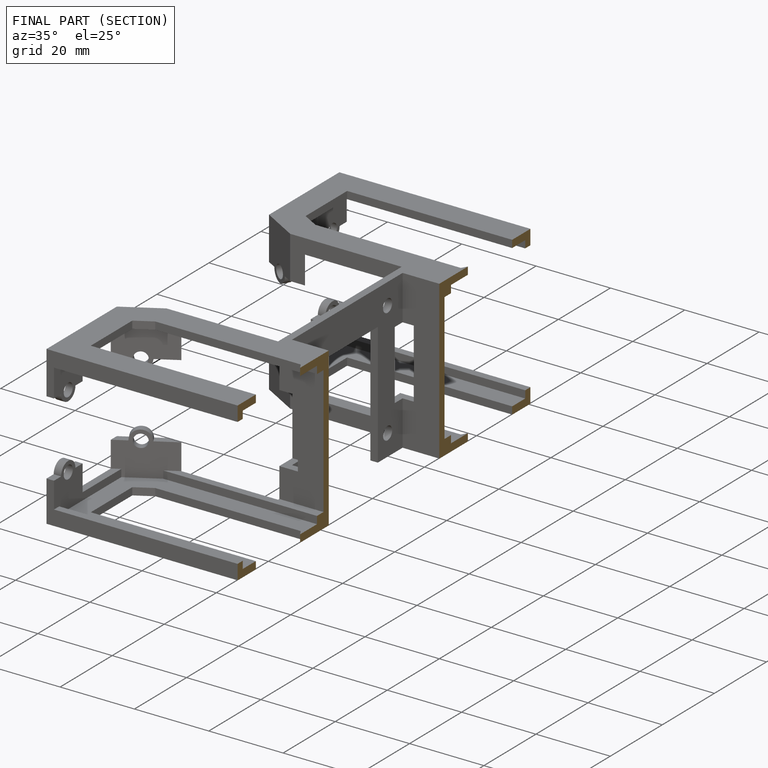
[diagram: finished part — half-section view (interior)]
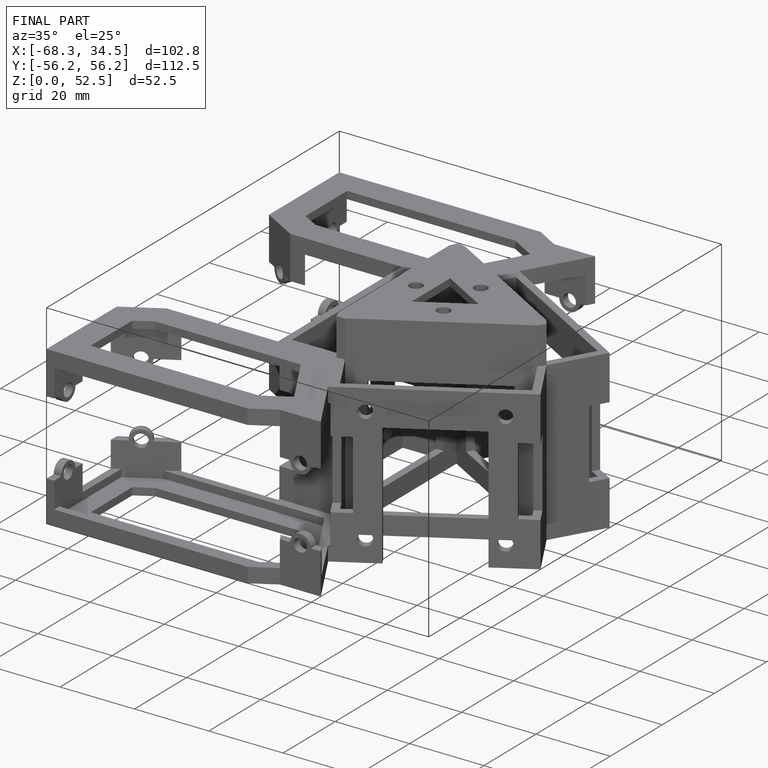
[diagram: finished part — iso view with bounding-box wireframe]
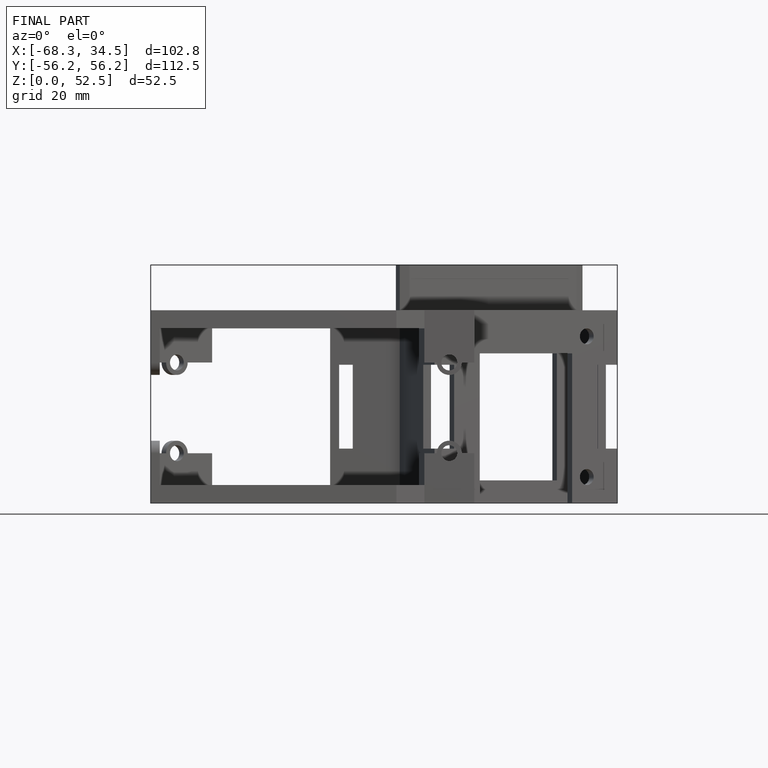
[diagram: finished part — front view with bounding-box wireframe]
